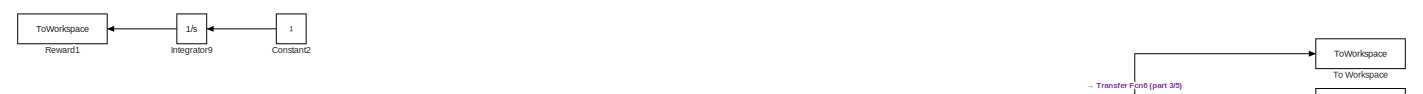
[diagram: root canvas - part 1/5, top right region]
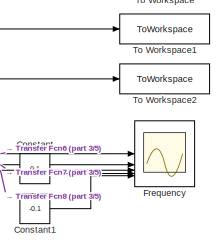
[diagram: root canvas - part 2/5, top right region]
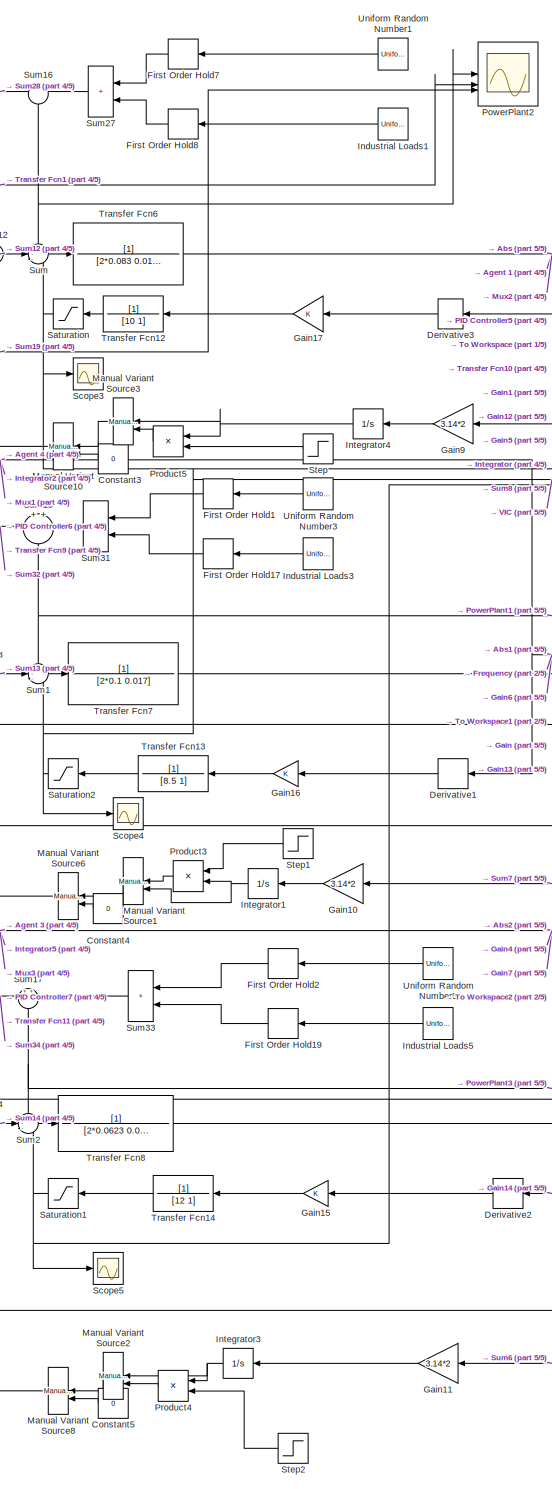
[diagram: root canvas - part 3/5, center side, full height]
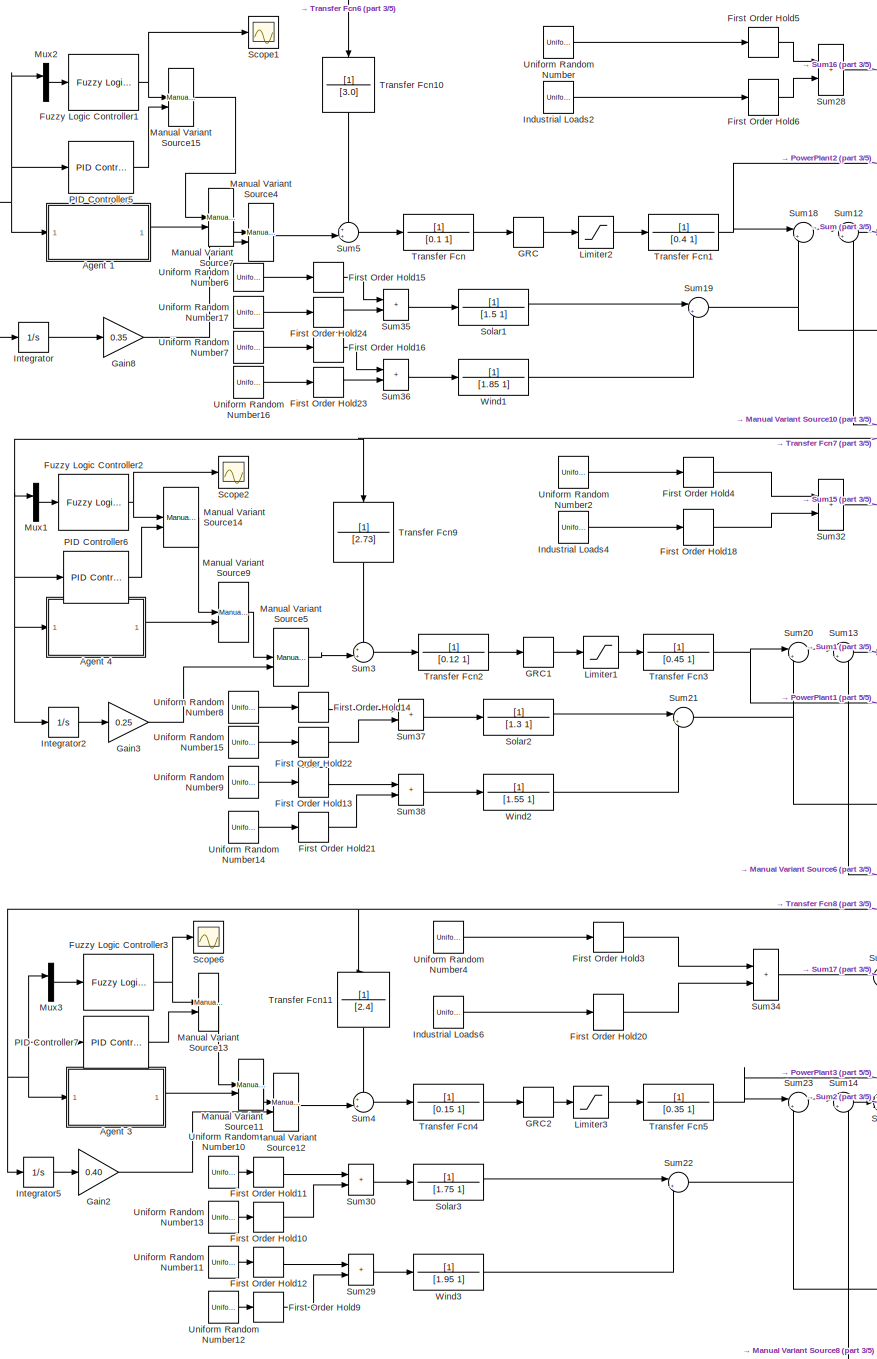
[diagram: root canvas - part 4/5, left side, full height]
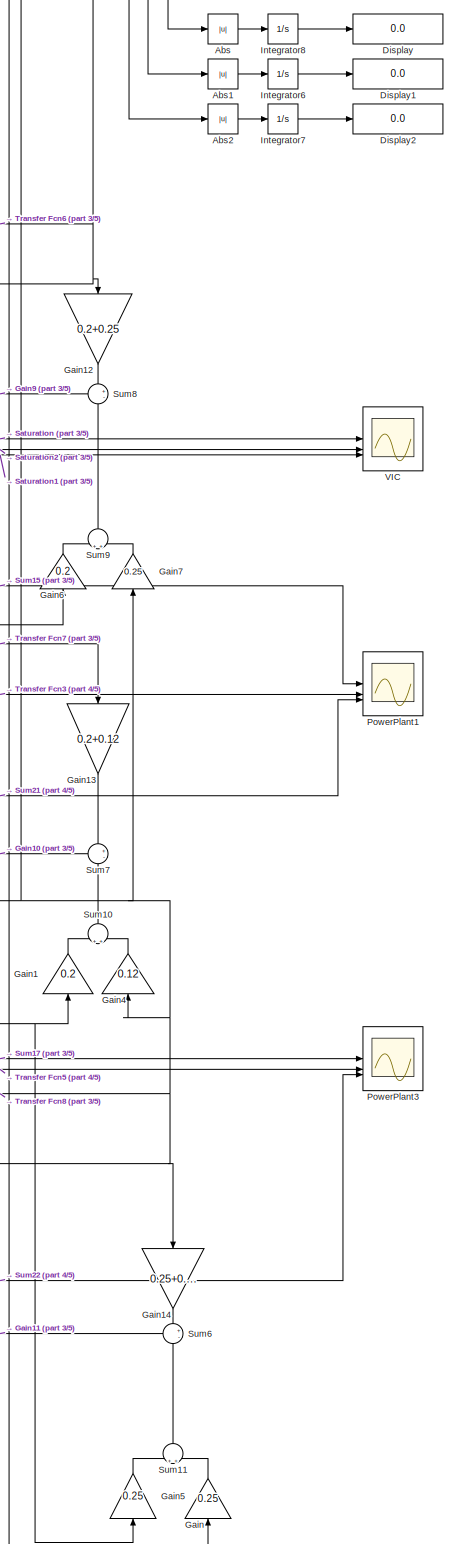
[diagram: root canvas - part 5/5, right side, full height]
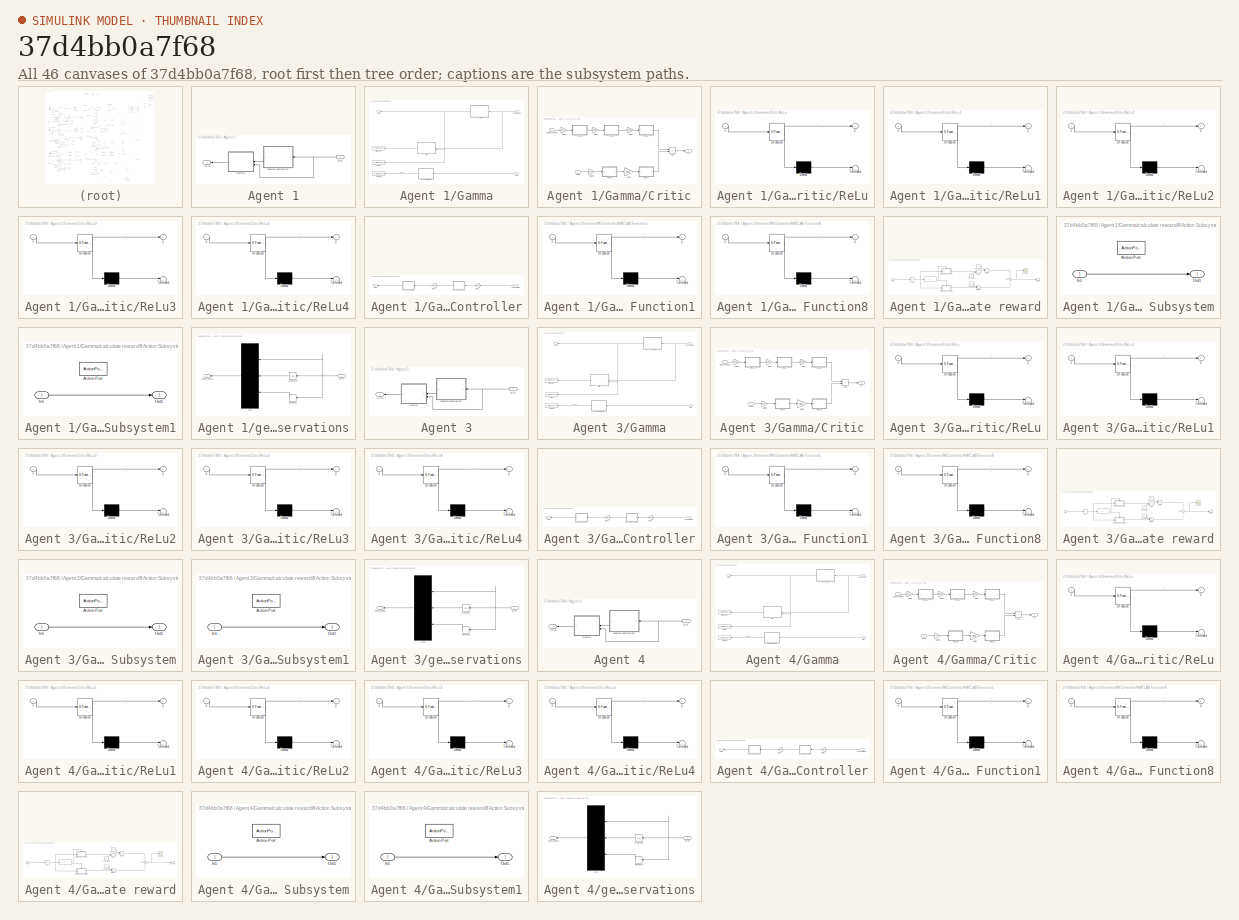
[diagram: thumbnail index - all 46 canvases of the model, root first then tree order]
MODEL slx_37d4bb0a7f68
KIND model
CONFIG AbsTol = auto
CONFIG EnableMultiTasking = off
CONFIG FixedStep = auto
CONFIG MaxStep = auto
CONFIG MinStep = auto
CONFIG RelTol = 1e-3
CONFIG SampleTimeConstraint = Unconstrained
CONFIG SolverName = ode45
CONFIG StartTime = 0.0
CONFIG StopTime = 1000
BLOCK [Abs] Abs
  SaturateOnIntegerOverflow = off
BLOCK [Abs] Abs1
  SaturateOnIntegerOverflow = off
BLOCK [Abs] Abs2
  SaturateOnIntegerOverflow = off
BLOCK [SubSystem] Agent 1
BLOCK [Outport] Agent 1/Action
BLOCK [SubSystem] Agent 1/Gamma
BLOCK [Outport] Agent 1/Gamma/Action
BLOCK [ToWorkspace] Agent 1/Gamma/Action1
  FixptAsFi = on
  MaxDataPoints = inf
  SampleTime = 1
  Save2DSignal = 2-D array (concatenate along first dimension)
  VariableName = Action1
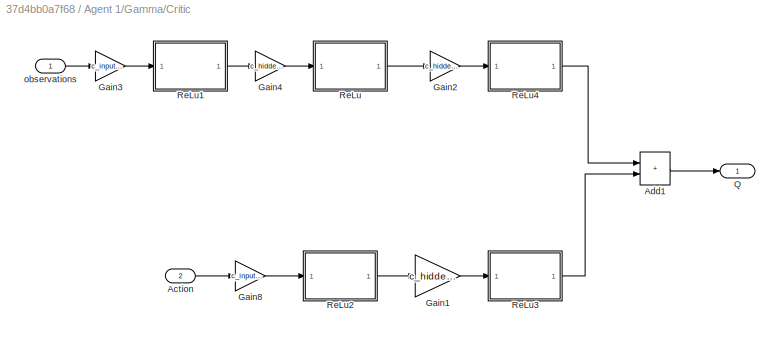
BLOCK [SubSystem] Agent 1/Gamma/Critic
  Commented = on
BLOCK [Inport] Agent 1/Gamma/Critic/Action
  Port = 2
BLOCK [Sum] Agent 1/Gamma/Critic/Add1
  IconShape = rectangular
BLOCK [Gain] Agent 1/Gamma/Critic/Gain1
  Gain = c_hidden_weights_a1
  Multiplication = Matrix(K*u)
BLOCK [Gain] Agent 1/Gamma/Critic/Gain2
  Gain = c_hidden_weights12
  Multiplication = Matrix(K*u)
BLOCK [Gain] Agent 1/Gamma/Critic/Gain3
  Gain = c_input_weights1
  Multiplication = Matrix(K*u)
BLOCK [Gain] Agent 1/Gamma/Critic/Gain4
  Gain = c_hidden_weights11
  Multiplication = Matrix(K*u)
BLOCK [Gain] Agent 1/Gamma/Critic/Gain8
  Gain = c_input_weights_a1
  Multiplication = Matrix(K*u)
BLOCK [Outport] Agent 1/Gamma/Critic/Q
BLOCK [SubSystem] Agent 1/Gamma/Critic/ReLu
  ErrorFcn = Stateflow.Translate.translate
  PermitHierarchicalResolution = ExplicitOnly
  SFBlockType = MATLAB Function
  TreatAsAtomicUnit = on
BLOCK [Demux] Agent 1/Gamma/Critic/ReLu/ Demux 
  Outputs = 1
BLOCK [S-Function] Agent 1/Gamma/Critic/ReLu/ SFunction 
  EnableBusSupport = on
  FunctionName = sf_sfun
  PortCounts = [1 2]
  SFcnIsStateOwnerBlock = off
  SFunctionDeploymentMode = off
  Tag = Stateflow S-Function 8
BLOCK [Terminator] Agent 1/Gamma/Critic/ReLu/ Terminator 
BLOCK [Inport] Agent 1/Gamma/Critic/ReLu/u
BLOCK [Outport] Agent 1/Gamma/Critic/ReLu/y
BLOCK [SubSystem] Agent 1/Gamma/Critic/ReLu1
  ErrorFcn = Stateflow.Translate.translate
  PermitHierarchicalResolution = ExplicitOnly
  SFBlockType = MATLAB Function
  TreatAsAtomicUnit = on
BLOCK [Demux] Agent 1/Gamma/Critic/ReLu1/ Demux 
  Outputs = 1
BLOCK [S-Function] Agent 1/Gamma/Critic/ReLu1/ SFunction 
  EnableBusSupport = on
  FunctionName = sf_sfun
  PortCounts = [1 2]
  SFcnIsStateOwnerBlock = off
  SFunctionDeploymentMode = off
  Tag = Stateflow S-Function 9
BLOCK [Terminator] Agent 1/Gamma/Critic/ReLu1/ Terminator 
BLOCK [Inport] Agent 1/Gamma/Critic/ReLu1/u
BLOCK [Outport] Agent 1/Gamma/Critic/ReLu1/y
BLOCK [SubSystem] Agent 1/Gamma/Critic/ReLu2
  ErrorFcn = Stateflow.Translate.translate
  PermitHierarchicalResolution = ExplicitOnly
  SFBlockType = MATLAB Function
  TreatAsAtomicUnit = on
BLOCK [Demux] Agent 1/Gamma/Critic/ReLu2/ Demux 
  Outputs = 1
BLOCK [S-Function] Agent 1/Gamma/Critic/ReLu2/ SFunction 
  EnableBusSupport = on
  FunctionName = sf_sfun
  PortCounts = [1 2]
  SFcnIsStateOwnerBlock = off
  SFunctionDeploymentMode = off
  Tag = Stateflow S-Function 10
BLOCK [Terminator] Agent 1/Gamma/Critic/ReLu2/ Terminator 
BLOCK [Inport] Agent 1/Gamma/Critic/ReLu2/u
BLOCK [Outport] Agent 1/Gamma/Critic/ReLu2/y
BLOCK [SubSystem] Agent 1/Gamma/Critic/ReLu3
  ErrorFcn = Stateflow.Translate.translate
  PermitHierarchicalResolution = ExplicitOnly
  SFBlockType = MATLAB Function
  TreatAsAtomicUnit = on
BLOCK [Demux] Agent 1/Gamma/Critic/ReLu3/ Demux 
  Outputs = 1
BLOCK [S-Function] Agent 1/Gamma/Critic/ReLu3/ SFunction 
  EnableBusSupport = on
  FunctionName = sf_sfun
  PortCounts = [1 2]
  SFcnIsStateOwnerBlock = off
  SFunctionDeploymentMode = off
  Tag = Stateflow S-Function 11
BLOCK [Terminator] Agent 1/Gamma/Critic/ReLu3/ Terminator 
BLOCK [Inport] Agent 1/Gamma/Critic/ReLu3/u
BLOCK [Outport] Agent 1/Gamma/Critic/ReLu3/y
BLOCK [SubSystem] Agent 1/Gamma/Critic/ReLu4
  ErrorFcn = Stateflow.Translate.translate
  PermitHierarchicalResolution = ExplicitOnly
  SFBlockType = MATLAB Function
  TreatAsAtomicUnit = on
BLOCK [Demux] Agent 1/Gamma/Critic/ReLu4/ Demux 
  Outputs = 1
BLOCK [S-Function] Agent 1/Gamma/Critic/ReLu4/ SFunction 
  EnableBusSupport = on
  FunctionName = sf_sfun
  PortCounts = [1 2]
  SFcnIsStateOwnerBlock = off
  SFunctionDeploymentMode = off
  Tag = Stateflow S-Function 12
BLOCK [Terminator] Agent 1/Gamma/Critic/ReLu4/ Terminator 
BLOCK [Inport] Agent 1/Gamma/Critic/ReLu4/u
BLOCK [Outport] Agent 1/Gamma/Critic/ReLu4/y
BLOCK [Inport] Agent 1/Gamma/Critic/observations
BLOCK [ToWorkspace] Agent 1/Gamma/CriticOutput
  Commented = on
  FixptAsFi = on
  MaxDataPoints = inf
  SampleTime = 1
  Save2DSignal = 2-D array (concatenate along first dimension)
  VariableName = CriticOutput1
BLOCK [SubSystem] Agent 1/Gamma/NN Controller
BLOCK [Outport] Agent 1/Gamma/NN Controller/Action
BLOCK [Gain] Agent 1/Gamma/NN Controller/Gain1
  Gain = a_input_weights1(:,:)
  Multiplication = Matrix(K*u)
BLOCK [Gain] Agent 1/Gamma/NN Controller/Gain4
  Gain = a_hidden_weights1(:,:)
  Multiplication = Matrix(K*u)
BLOCK [SubSystem] Agent 1/Gamma/NN Controller/MATLAB Function1
  ErrorFcn = Stateflow.Translate.translate
  PermitHierarchicalResolution = ExplicitOnly
  SFBlockType = MATLAB Function
  TreatAsAtomicUnit = on
BLOCK [Demux] Agent 1/Gamma/NN Controller/MATLAB Function1/ Demux 
  Outputs = 1
BLOCK [S-Function] Agent 1/Gamma/NN Controller/MATLAB Function1/ SFunction 
  EnableBusSupport = on
  FunctionName = sf_sfun
  PortCounts = [1 2]
  SFcnIsStateOwnerBlock = off
  SFunctionDeploymentMode = off
  Tag = Stateflow S-Function 13
BLOCK [Terminator] Agent 1/Gamma/NN Controller/MATLAB Function1/ Terminator 
BLOCK [Inport] Agent 1/Gamma/NN Controller/MATLAB Function1/u
BLOCK [Outport] Agent 1/Gamma/NN Controller/MATLAB Function1/y
BLOCK [SubSystem] Agent 1/Gamma/NN Controller/MATLAB Function8
  ErrorFcn = Stateflow.Translate.translate
  PermitHierarchicalResolution = ExplicitOnly
  SFBlockType = MATLAB Function
  TreatAsAtomicUnit = on
BLOCK [Demux] Agent 1/Gamma/NN Controller/MATLAB Function8/ Demux 
  Outputs = 1
BLOCK [S-Function] Agent 1/Gamma/NN Controller/MATLAB Function8/ SFunction 
  EnableBusSupport = on
  FunctionName = sf_sfun
  PortCounts = [1 2]
  SFcnIsStateOwnerBlock = off
  SFunctionDeploymentMode = off
  Tag = Stateflow S-Function 14
BLOCK [Terminator] Agent 1/Gamma/NN Controller/MATLAB Function8/ Terminator 
BLOCK [Inport] Agent 1/Gamma/NN Controller/MATLAB Function8/u
BLOCK [Outport] Agent 1/Gamma/NN Controller/MATLAB Function8/y
BLOCK [Inport] Agent 1/Gamma/NN Controller/observations
BLOCK [ToWorkspace] Agent 1/Gamma/Reward
  FixptAsFi = on
  MaxDataPoints = inf
  SampleTime = 1
  Save2DSignal = 2-D array (concatenate along first dimension)
  VariableName = Reward1
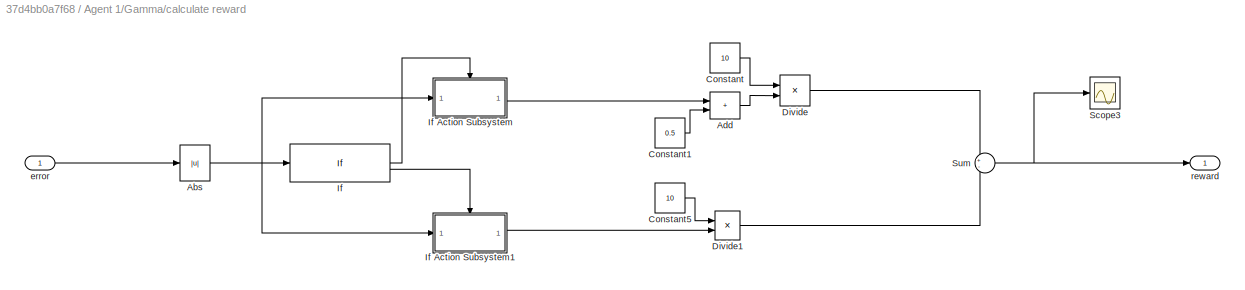
BLOCK [SubSystem] Agent 1/Gamma/calculate reward
BLOCK [Abs] Agent 1/Gamma/calculate reward/Abs
  SaturateOnIntegerOverflow = off
BLOCK [Sum] Agent 1/Gamma/calculate reward/Add
  IconShape = rectangular
BLOCK [Constant] Agent 1/Gamma/calculate reward/Constant
  Value = 10
BLOCK [Constant] Agent 1/Gamma/calculate reward/Constant1
  Value = 0.5
  VectorParams1D = off
BLOCK [Constant] Agent 1/Gamma/calculate reward/Constant5
  Value = 10
  VectorParams1D = off
BLOCK [Product] Agent 1/Gamma/calculate reward/Divide
  Inputs = */
BLOCK [Product] Agent 1/Gamma/calculate reward/Divide1
  Inputs = **
BLOCK [If] Agent 1/Gamma/calculate reward/If
  ElseIfExpressions = u1 > 0.05
  IfExpression = u1 < 0.05
  ShowElse = off
BLOCK [SubSystem] Agent 1/Gamma/calculate reward/If Action Subsystem
  TreatAsAtomicUnit = on
BLOCK [ActionPort] Agent 1/Gamma/calculate reward/If Action Subsystem/Action Port
  ActionPortLabel = if(u1 < 0.05)
BLOCK [Inport] Agent 1/Gamma/calculate reward/If Action Subsystem/In1
BLOCK [Outport] Agent 1/Gamma/calculate reward/If Action Subsystem/Out1
BLOCK [SubSystem] Agent 1/Gamma/calculate reward/If Action Subsystem1
  TreatAsAtomicUnit = on
BLOCK [ActionPort] Agent 1/Gamma/calculate reward/If Action Subsystem1/Action Port
  ActionPortLabel = elseif(u1 > 0.05)
BLOCK [Inport] Agent 1/Gamma/calculate reward/If Action Subsystem1/In1
BLOCK [Outport] Agent 1/Gamma/calculate reward/If Action Subsystem1/Out1
BLOCK [Scope] Agent 1/Gamma/calculate reward/Scope3
  Floating = off
  NumInputPorts = 1
  ScopeSpecificationString = Simulink.scopes.TimeScopeBlockCfg('CurrentConfiguration', extmgr.ConfigurationSet(extmgr.Configuration('Core','General UI',true,'FigureColor',[1 1 1]),extmgr.Configuration('Core','Source UI',true),extmgr.Configuration('Sources','WiredSimulink',true,'DataLoggingVariableName','ScopeData1'),extmgr.Configuration('Visuals','Time Domain',true,'SerializedDisplays',{struct('MinYLimReal','7.80228','MaxYLim...<+1540ch>  <repeated x3 — deduplicated; at blocks: Scope3>
BLOCK [Sum] Agent 1/Gamma/calculate reward/Sum
  Inputs = +-
  OutDataTypeStr = double
BLOCK [Inport] Agent 1/Gamma/calculate reward/error
BLOCK [Outport] Agent 1/Gamma/calculate reward/reward
  VectorParamsAs1DForOutWhenUnconnected = off
BLOCK [Inport] Agent 1/Gamma/error
  Port = 2
BLOCK [Inport] Agent 1/Gamma/observations
BLOCK [Inport] Agent 1/error
BLOCK [SubSystem] Agent 1/generate observations
BLOCK [Derivative] Agent 1/generate observations/Derivative
BLOCK [Integrator] Agent 1/generate observations/Integrator
  IgnoreLimit = on
BLOCK [Mux] Agent 1/generate observations/Mux
  DisplayOption = bar
  Inputs = 3
BLOCK [Inport] Agent 1/generate observations/error
BLOCK [Outport] Agent 1/generate observations/observations
  VectorParamsAs1DForOutWhenUnconnected = off
BLOCK [SubSystem] Agent 3
BLOCK [Outport] Agent 3/Action
BLOCK [SubSystem] Agent 3/Gamma
BLOCK [Outport] Agent 3/Gamma/Action
BLOCK [ToWorkspace] Agent 3/Gamma/Action1
  FixptAsFi = on
  MaxDataPoints = inf
  SampleTime = 1
  Save2DSignal = 2-D array (concatenate along first dimension)
  VariableName = Action3
BLOCK [SubSystem] Agent 3/Gamma/Critic
  Commented = on
BLOCK [Inport] Agent 3/Gamma/Critic/Action
  Port = 2
BLOCK [Sum] Agent 3/Gamma/Critic/Add1
  IconShape = rectangular
BLOCK [Gain] Agent 3/Gamma/Critic/Gain1
  Gain = c_hidden_weights_a3
  Multiplication = Matrix(K*u)
BLOCK [Gain] Agent 3/Gamma/Critic/Gain2
  Gain = c_hidden_weights32
  Multiplication = Matrix(K*u)
BLOCK [Gain] Agent 3/Gamma/Critic/Gain3
  Gain = c_input_weights3
  Multiplication = Matrix(K*u)
BLOCK [Gain] Agent 3/Gamma/Critic/Gain4
  Gain = c_hidden_weights31
  Multiplication = Matrix(K*u)
BLOCK [Gain] Agent 3/Gamma/Critic/Gain8
  Gain = c_input_weights_a3
  Multiplication = Matrix(K*u)
BLOCK [Outport] Agent 3/Gamma/Critic/Q
BLOCK [SubSystem] Agent 3/Gamma/Critic/ReLu
  ErrorFcn = Stateflow.Translate.translate
  PermitHierarchicalResolution = ExplicitOnly
  SFBlockType = MATLAB Function
  TreatAsAtomicUnit = on
BLOCK [Demux] Agent 3/Gamma/Critic/ReLu/ Demux 
  Outputs = 1
BLOCK [S-Function] Agent 3/Gamma/Critic/ReLu/ SFunction 
  EnableBusSupport = on
  FunctionName = sf_sfun
  PortCounts = [1 2]
  SFcnIsStateOwnerBlock = off
  SFunctionDeploymentMode = off
  Tag = Stateflow S-Function 1
BLOCK [Terminator] Agent 3/Gamma/Critic/ReLu/ Terminator 
BLOCK [Inport] Agent 3/Gamma/Critic/ReLu/u
BLOCK [Outport] Agent 3/Gamma/Critic/ReLu/y
BLOCK [SubSystem] Agent 3/Gamma/Critic/ReLu1
  ErrorFcn = Stateflow.Translate.translate
  PermitHierarchicalResolution = ExplicitOnly
  SFBlockType = MATLAB Function
  TreatAsAtomicUnit = on
BLOCK [Demux] Agent 3/Gamma/Critic/ReLu1/ Demux 
  Outputs = 1
BLOCK [S-Function] Agent 3/Gamma/Critic/ReLu1/ SFunction 
  EnableBusSupport = on
  FunctionName = sf_sfun
  PortCounts = [1 2]
  SFcnIsStateOwnerBlock = off
  SFunctionDeploymentMode = off
  Tag = Stateflow S-Function 2
BLOCK [Terminator] Agent 3/Gamma/Critic/ReLu1/ Terminator 
BLOCK [Inport] Agent 3/Gamma/Critic/ReLu1/u
BLOCK [Outport] Agent 3/Gamma/Critic/ReLu1/y
BLOCK [SubSystem] Agent 3/Gamma/Critic/ReLu2
  ErrorFcn = Stateflow.Translate.translate
  PermitHierarchicalResolution = ExplicitOnly
  SFBlockType = MATLAB Function
  TreatAsAtomicUnit = on
BLOCK [Demux] Agent 3/Gamma/Critic/ReLu2/ Demux 
  Outputs = 1
BLOCK [S-Function] Agent 3/Gamma/Critic/ReLu2/ SFunction 
  EnableBusSupport = on
  FunctionName = sf_sfun
  PortCounts = [1 2]
  SFcnIsStateOwnerBlock = off
  SFunctionDeploymentMode = off
  Tag = Stateflow S-Function 3
BLOCK [Terminator] Agent 3/Gamma/Critic/ReLu2/ Terminator 
BLOCK [Inport] Agent 3/Gamma/Critic/ReLu2/u
BLOCK [Outport] Agent 3/Gamma/Critic/ReLu2/y
BLOCK [SubSystem] Agent 3/Gamma/Critic/ReLu3
  ErrorFcn = Stateflow.Translate.translate
  PermitHierarchicalResolution = ExplicitOnly
  SFBlockType = MATLAB Function
  TreatAsAtomicUnit = on
BLOCK [Demux] Agent 3/Gamma/Critic/ReLu3/ Demux 
  Outputs = 1
BLOCK [S-Function] Agent 3/Gamma/Critic/ReLu3/ SFunction 
  EnableBusSupport = on
  FunctionName = sf_sfun
  PortCounts = [1 2]
  SFcnIsStateOwnerBlock = off
  SFunctionDeploymentMode = off
  Tag = Stateflow S-Function 4
BLOCK [Terminator] Agent 3/Gamma/Critic/ReLu3/ Terminator 
BLOCK [Inport] Agent 3/Gamma/Critic/ReLu3/u
BLOCK [Outport] Agent 3/Gamma/Critic/ReLu3/y
BLOCK [SubSystem] Agent 3/Gamma/Critic/ReLu4
  ErrorFcn = Stateflow.Translate.translate
  PermitHierarchicalResolution = ExplicitOnly
  SFBlockType = MATLAB Function
  TreatAsAtomicUnit = on
BLOCK [Demux] Agent 3/Gamma/Critic/ReLu4/ Demux 
  Outputs = 1
BLOCK [S-Function] Agent 3/Gamma/Critic/ReLu4/ SFunction 
  EnableBusSupport = on
  FunctionName = sf_sfun
  PortCounts = [1 2]
  SFcnIsStateOwnerBlock = off
  SFunctionDeploymentMode = off
  Tag = Stateflow S-Function 5
BLOCK [Terminator] Agent 3/Gamma/Critic/ReLu4/ Terminator 
BLOCK [Inport] Agent 3/Gamma/Critic/ReLu4/u
BLOCK [Outport] Agent 3/Gamma/Critic/ReLu4/y
BLOCK [Inport] Agent 3/Gamma/Critic/observations
BLOCK [ToWorkspace] Agent 3/Gamma/CriticOutput
  Commented = on
  FixptAsFi = on
  MaxDataPoints = inf
  SampleTime = 1
  Save2DSignal = 2-D array (concatenate along first dimension)
  VariableName = CriticOutput3
BLOCK [SubSystem] Agent 3/Gamma/NN Controller
BLOCK [Outport] Agent 3/Gamma/NN Controller/Action
BLOCK [Gain] Agent 3/Gamma/NN Controller/Gain1
  Gain = a_input_weights3(:,:)
  Multiplication = Matrix(K*u)
BLOCK [Gain] Agent 3/Gamma/NN Controller/Gain4
  Gain = a_hidden_weights3(:,:)
  Multiplication = Matrix(K*u)
BLOCK [SubSystem] Agent 3/Gamma/NN Controller/MATLAB Function1
  ErrorFcn = Stateflow.Translate.translate
  PermitHierarchicalResolution = ExplicitOnly
  SFBlockType = MATLAB Function
  TreatAsAtomicUnit = on
BLOCK [Demux] Agent 3/Gamma/NN Controller/MATLAB Function1/ Demux 
  Outputs = 1
BLOCK [S-Function] Agent 3/Gamma/NN Controller/MATLAB Function1/ SFunction 
  EnableBusSupport = on
  FunctionName = sf_sfun
  PortCounts = [1 2]
  SFcnIsStateOwnerBlock = off
  SFunctionDeploymentMode = off
  Tag = Stateflow S-Function 6
BLOCK [Terminator] Agent 3/Gamma/NN Controller/MATLAB Function1/ Terminator 
BLOCK [Inport] Agent 3/Gamma/NN Controller/MATLAB Function1/u
BLOCK [Outport] Agent 3/Gamma/NN Controller/MATLAB Function1/y
BLOCK [SubSystem] Agent 3/Gamma/NN Controller/MATLAB Function8
  ErrorFcn = Stateflow.Translate.translate
  PermitHierarchicalResolution = ExplicitOnly
  SFBlockType = MATLAB Function
  TreatAsAtomicUnit = on
BLOCK [Demux] Agent 3/Gamma/NN Controller/MATLAB Function8/ Demux 
  Outputs = 1
BLOCK [S-Function] Agent 3/Gamma/NN Controller/MATLAB Function8/ SFunction 
  EnableBusSupport = on
  FunctionName = sf_sfun
  PortCounts = [1 2]
  SFcnIsStateOwnerBlock = off
  SFunctionDeploymentMode = off
  Tag = Stateflow S-Function 7
BLOCK [Terminator] Agent 3/Gamma/NN Controller/MATLAB Function8/ Terminator 
BLOCK [Inport] Agent 3/Gamma/NN Controller/MATLAB Function8/u
BLOCK [Outport] Agent 3/Gamma/NN Controller/MATLAB Function8/y
BLOCK [Inport] Agent 3/Gamma/NN Controller/observations
BLOCK [ToWorkspace] Agent 3/Gamma/Reward
  FixptAsFi = on
  MaxDataPoints = inf
  SampleTime = 1
  Save2DSignal = 2-D array (concatenate along first dimension)
  VariableName = Reward3
BLOCK [SubSystem] Agent 3/Gamma/calculate reward
BLOCK [Abs] Agent 3/Gamma/calculate reward/Abs
  SaturateOnIntegerOverflow = off
BLOCK [Sum] Agent 3/Gamma/calculate reward/Add
  IconShape = rectangular
BLOCK [Constant] Agent 3/Gamma/calculate reward/Constant
  Value = 10
BLOCK [Constant] Agent 3/Gamma/calculate reward/Constant1
  Value = 0.5
  VectorParams1D = off
BLOCK [Constant] Agent 3/Gamma/calculate reward/Constant5
  Value = 10
  VectorParams1D = off
BLOCK [Product] Agent 3/Gamma/calculate reward/Divide
  Inputs = */
BLOCK [Product] Agent 3/Gamma/calculate reward/Divide1
  Inputs = **
BLOCK [If] Agent 3/Gamma/calculate reward/If
  ElseIfExpressions = u1 > 0.05
  IfExpression = u1 < 0.05
  ShowElse = off
BLOCK [SubSystem] Agent 3/Gamma/calculate reward/If Action Subsystem
  TreatAsAtomicUnit = on
BLOCK [ActionPort] Agent 3/Gamma/calculate reward/If Action Subsystem/Action Port
  ActionPortLabel = if(u1 < 0.05)
BLOCK [Inport] Agent 3/Gamma/calculate reward/If Action Subsystem/In1
BLOCK [Outport] Agent 3/Gamma/calculate reward/If Action Subsystem/Out1
BLOCK [SubSystem] Agent 3/Gamma/calculate reward/If Action Subsystem1
  TreatAsAtomicUnit = on
BLOCK [ActionPort] Agent 3/Gamma/calculate reward/If Action Subsystem1/Action Port
  ActionPortLabel = elseif(u1 > 0.05)
BLOCK [Inport] Agent 3/Gamma/calculate reward/If Action Subsystem1/In1
BLOCK [Outport] Agent 3/Gamma/calculate reward/If Action Subsystem1/Out1
BLOCK [Scope] Agent 3/Gamma/calculate reward/Scope3
  Floating = off
  NumInputPorts = 1
BLOCK [Sum] Agent 3/Gamma/calculate reward/Sum
  Inputs = +-
  OutDataTypeStr = double
BLOCK [Inport] Agent 3/Gamma/calculate reward/error
BLOCK [Outport] Agent 3/Gamma/calculate reward/reward
  VectorParamsAs1DForOutWhenUnconnected = off
BLOCK [Inport] Agent 3/Gamma/error
  Port = 2
BLOCK [Inport] Agent 3/Gamma/observations
BLOCK [Inport] Agent 3/error
BLOCK [SubSystem] Agent 3/generate observations
BLOCK [Derivative] Agent 3/generate observations/Derivative
BLOCK [Integrator] Agent 3/generate observations/Integrator
  IgnoreLimit = on
BLOCK [Mux] Agent 3/generate observations/Mux
  DisplayOption = bar
  Inputs = 3
BLOCK [Inport] Agent 3/generate observations/error
BLOCK [Outport] Agent 3/generate observations/observations
  VectorParamsAs1DForOutWhenUnconnected = off
BLOCK [SubSystem] Agent 4
BLOCK [Outport] Agent 4/Action
BLOCK [SubSystem] Agent 4/Gamma
BLOCK [Outport] Agent 4/Gamma/Action
BLOCK [ToWorkspace] Agent 4/Gamma/Action1
  FixptAsFi = on
  MaxDataPoints = inf
  SampleTime = 1
  Save2DSignal = 2-D array (concatenate along first dimension)
  VariableName = Action2
BLOCK [SubSystem] Agent 4/Gamma/Critic
  Commented = on
BLOCK [Inport] Agent 4/Gamma/Critic/Action
  Port = 2
BLOCK [Sum] Agent 4/Gamma/Critic/Add1
  IconShape = rectangular
BLOCK [Gain] Agent 4/Gamma/Critic/Gain1
  Gain = c_hidden_weights_a2
  Multiplication = Matrix(K*u)
BLOCK [Gain] Agent 4/Gamma/Critic/Gain2
  Gain = c_hidden_weights22
  Multiplication = Matrix(K*u)
BLOCK [Gain] Agent 4/Gamma/Critic/Gain3
  Gain = c_input_weights2
  Multiplication = Matrix(K*u)
BLOCK [Gain] Agent 4/Gamma/Critic/Gain4
  Gain = c_hidden_weights21
  Multiplication = Matrix(K*u)
BLOCK [Gain] Agent 4/Gamma/Critic/Gain8
  Gain = c_input_weights_a2
  Multiplication = Matrix(K*u)
BLOCK [Outport] Agent 4/Gamma/Critic/Q
BLOCK [SubSystem] Agent 4/Gamma/Critic/ReLu
  ErrorFcn = Stateflow.Translate.translate
  PermitHierarchicalResolution = ExplicitOnly
  SFBlockType = MATLAB Function
  TreatAsAtomicUnit = on
BLOCK [Demux] Agent 4/Gamma/Critic/ReLu/ Demux 
  Outputs = 1
BLOCK [S-Function] Agent 4/Gamma/Critic/ReLu/ SFunction 
  EnableBusSupport = on
  FunctionName = sf_sfun
  PortCounts = [1 2]
  SFcnIsStateOwnerBlock = off
  SFunctionDeploymentMode = off
  Tag = Stateflow S-Function 19
BLOCK [Terminator] Agent 4/Gamma/Critic/ReLu/ Terminator 
BLOCK [Inport] Agent 4/Gamma/Critic/ReLu/u
BLOCK [Outport] Agent 4/Gamma/Critic/ReLu/y
BLOCK [SubSystem] Agent 4/Gamma/Critic/ReLu1
  ErrorFcn = Stateflow.Translate.translate
  PermitHierarchicalResolution = ExplicitOnly
  SFBlockType = MATLAB Function
  TreatAsAtomicUnit = on
BLOCK [Demux] Agent 4/Gamma/Critic/ReLu1/ Demux 
  Outputs = 1
BLOCK [S-Function] Agent 4/Gamma/Critic/ReLu1/ SFunction 
  EnableBusSupport = on
  FunctionName = sf_sfun
  PortCounts = [1 2]
  SFcnIsStateOwnerBlock = off
  SFunctionDeploymentMode = off
  Tag = Stateflow S-Function 20
BLOCK [Terminator] Agent 4/Gamma/Critic/ReLu1/ Terminator 
BLOCK [Inport] Agent 4/Gamma/Critic/ReLu1/u
BLOCK [Outport] Agent 4/Gamma/Critic/ReLu1/y
BLOCK [SubSystem] Agent 4/Gamma/Critic/ReLu2
  ErrorFcn = Stateflow.Translate.translate
  PermitHierarchicalResolution = ExplicitOnly
  SFBlockType = MATLAB Function
  TreatAsAtomicUnit = on
BLOCK [Demux] Agent 4/Gamma/Critic/ReLu2/ Demux 
  Outputs = 1
BLOCK [S-Function] Agent 4/Gamma/Critic/ReLu2/ SFunction 
  EnableBusSupport = on
  FunctionName = sf_sfun
  PortCounts = [1 2]
  SFcnIsStateOwnerBlock = off
  SFunctionDeploymentMode = off
  Tag = Stateflow S-Function 21
BLOCK [Terminator] Agent 4/Gamma/Critic/ReLu2/ Terminator 
BLOCK [Inport] Agent 4/Gamma/Critic/ReLu2/u
BLOCK [Outport] Agent 4/Gamma/Critic/ReLu2/y
BLOCK [SubSystem] Agent 4/Gamma/Critic/ReLu3
  ErrorFcn = Stateflow.Translate.translate
  PermitHierarchicalResolution = ExplicitOnly
  SFBlockType = MATLAB Function
  TreatAsAtomicUnit = on
BLOCK [Demux] Agent 4/Gamma/Critic/ReLu3/ Demux 
  Outputs = 1
BLOCK [S-Function] Agent 4/Gamma/Critic/ReLu3/ SFunction 
  EnableBusSupport = on
  FunctionName = sf_sfun
  PortCounts = [1 2]
  SFcnIsStateOwnerBlock = off
  SFunctionDeploymentMode = off
  Tag = Stateflow S-Function 22
BLOCK [Terminator] Agent 4/Gamma/Critic/ReLu3/ Terminator 
BLOCK [Inport] Agent 4/Gamma/Critic/ReLu3/u
BLOCK [Outport] Agent 4/Gamma/Critic/ReLu3/y
BLOCK [SubSystem] Agent 4/Gamma/Critic/ReLu4
  ErrorFcn = Stateflow.Translate.translate
  PermitHierarchicalResolution = ExplicitOnly
  SFBlockType = MATLAB Function
  TreatAsAtomicUnit = on
BLOCK [Demux] Agent 4/Gamma/Critic/ReLu4/ Demux 
  Outputs = 1
BLOCK [S-Function] Agent 4/Gamma/Critic/ReLu4/ SFunction 
  EnableBusSupport = on
  FunctionName = sf_sfun
  PortCounts = [1 2]
  SFcnIsStateOwnerBlock = off
  SFunctionDeploymentMode = off
  Tag = Stateflow S-Function 23
BLOCK [Terminator] Agent 4/Gamma/Critic/ReLu4/ Terminator 
BLOCK [Inport] Agent 4/Gamma/Critic/ReLu4/u
BLOCK [Outport] Agent 4/Gamma/Critic/ReLu4/y
BLOCK [Inport] Agent 4/Gamma/Critic/observations
BLOCK [ToWorkspace] Agent 4/Gamma/CriticOutput
  Commented = on
  FixptAsFi = on
  MaxDataPoints = inf
  SampleTime = 1
  Save2DSignal = 2-D array (concatenate along first dimension)
  VariableName = CriticOutput2
BLOCK [SubSystem] Agent 4/Gamma/NN Controller
BLOCK [Outport] Agent 4/Gamma/NN Controller/Action
BLOCK [Gain] Agent 4/Gamma/NN Controller/Gain1
  Gain = a_input_weights2(:,:)
  Multiplication = Matrix(K*u)
BLOCK [Gain] Agent 4/Gamma/NN Controller/Gain4
  Gain = a_hidden_weights2(:,:)
  Multiplication = Matrix(K*u)
BLOCK [SubSystem] Agent 4/Gamma/NN Controller/MATLAB Function1
  ErrorFcn = Stateflow.Translate.translate
  PermitHierarchicalResolution = ExplicitOnly
  SFBlockType = MATLAB Function
  TreatAsAtomicUnit = on
BLOCK [Demux] Agent 4/Gamma/NN Controller/MATLAB Function1/ Demux 
  Outputs = 1
BLOCK [S-Function] Agent 4/Gamma/NN Controller/MATLAB Function1/ SFunction 
  EnableBusSupport = on
  FunctionName = sf_sfun
  PortCounts = [1 2]
  SFcnIsStateOwnerBlock = off
  SFunctionDeploymentMode = off
  Tag = Stateflow S-Function 24
BLOCK [Terminator] Agent 4/Gamma/NN Controller/MATLAB Function1/ Terminator 
BLOCK [Inport] Agent 4/Gamma/NN Controller/MATLAB Function1/u
BLOCK [Outport] Agent 4/Gamma/NN Controller/MATLAB Function1/y
BLOCK [SubSystem] Agent 4/Gamma/NN Controller/MATLAB Function8
  ErrorFcn = Stateflow.Translate.translate
  PermitHierarchicalResolution = ExplicitOnly
  SFBlockType = MATLAB Function
  TreatAsAtomicUnit = on
BLOCK [Demux] Agent 4/Gamma/NN Controller/MATLAB Function8/ Demux 
  Outputs = 1
BLOCK [S-Function] Agent 4/Gamma/NN Controller/MATLAB Function8/ SFunction 
  EnableBusSupport = on
  FunctionName = sf_sfun
  PortCounts = [1 2]
  SFcnIsStateOwnerBlock = off
  SFunctionDeploymentMode = off
  Tag = Stateflow S-Function 25
BLOCK [Terminator] Agent 4/Gamma/NN Controller/MATLAB Function8/ Terminator 
BLOCK [Inport] Agent 4/Gamma/NN Controller/MATLAB Function8/u
BLOCK [Outport] Agent 4/Gamma/NN Controller/MATLAB Function8/y
BLOCK [Inport] Agent 4/Gamma/NN Controller/observations
BLOCK [ToWorkspace] Agent 4/Gamma/Reward
  FixptAsFi = on
  MaxDataPoints = inf
  SampleTime = 1
  Save2DSignal = 2-D array (concatenate along first dimension)
  VariableName = Reward2
BLOCK [SubSystem] Agent 4/Gamma/calculate reward
BLOCK [Abs] Agent 4/Gamma/calculate reward/Abs
  SaturateOnIntegerOverflow = off
BLOCK [Sum] Agent 4/Gamma/calculate reward/Add
  IconShape = rectangular
BLOCK [Constant] Agent 4/Gamma/calculate reward/Constant
  Value = 10
BLOCK [Constant] Agent 4/Gamma/calculate reward/Constant1
  Value = 0.5
  VectorParams1D = off
BLOCK [Constant] Agent 4/Gamma/calculate reward/Constant5
  Value = 10
  VectorParams1D = off
BLOCK [Product] Agent 4/Gamma/calculate reward/Divide
  Inputs = */
BLOCK [Product] Agent 4/Gamma/calculate reward/Divide1
  Inputs = **
BLOCK [If] Agent 4/Gamma/calculate reward/If
  ElseIfExpressions = u1 > 0.05
  IfExpression = u1 < 0.05
  ShowElse = off
BLOCK [SubSystem] Agent 4/Gamma/calculate reward/If Action Subsystem
  TreatAsAtomicUnit = on
BLOCK [ActionPort] Agent 4/Gamma/calculate reward/If Action Subsystem/Action Port
  ActionPortLabel = if(u1 < 0.05)
BLOCK [Inport] Agent 4/Gamma/calculate reward/If Action Subsystem/In1
BLOCK [Outport] Agent 4/Gamma/calculate reward/If Action Subsystem/Out1
BLOCK [SubSystem] Agent 4/Gamma/calculate reward/If Action Subsystem1
  TreatAsAtomicUnit = on
BLOCK [ActionPort] Agent 4/Gamma/calculate reward/If Action Subsystem1/Action Port
  ActionPortLabel = elseif(u1 > 0.05)
BLOCK [Inport] Agent 4/Gamma/calculate reward/If Action Subsystem1/In1
BLOCK [Outport] Agent 4/Gamma/calculate reward/If Action Subsystem1/Out1
BLOCK [Scope] Agent 4/Gamma/calculate reward/Scope3
  Floating = off
  NumInputPorts = 1
BLOCK [Sum] Agent 4/Gamma/calculate reward/Sum
  Inputs = +-
  OutDataTypeStr = double
BLOCK [Inport] Agent 4/Gamma/calculate reward/error
BLOCK [Outport] Agent 4/Gamma/calculate reward/reward
  VectorParamsAs1DForOutWhenUnconnected = off
BLOCK [Inport] Agent 4/Gamma/error
  Port = 2
BLOCK [Inport] Agent 4/Gamma/observations
BLOCK [Inport] Agent 4/error
BLOCK [SubSystem] Agent 4/generate observations
BLOCK [Derivative] Agent 4/generate observations/Derivative
BLOCK [Integrator] Agent 4/generate observations/Integrator
  IgnoreLimit = on
BLOCK [Mux] Agent 4/generate observations/Mux
  DisplayOption = bar
  Inputs = 3
BLOCK [Inport] Agent 4/generate observations/error
BLOCK [Outport] Agent 4/generate observations/observations
  VectorParamsAs1DForOutWhenUnconnected = off
BLOCK [Constant] Constant
  Value = 0.1
BLOCK [Constant] Constant1
  Value = -0.1
BLOCK [Constant] Constant2
  SampleTime = 1
BLOCK [Constant] Constant3
  Value = 0
BLOCK [Constant] Constant4
  Value = 0
BLOCK [Constant] Constant5
  Value = 0
BLOCK [Derivative] Derivative1
BLOCK [Derivative] Derivative2
BLOCK [Derivative] Derivative3
BLOCK [Display] Display
  Decimation = 1
BLOCK [Display] Display1
  Decimation = 1
BLOCK [Display] Display2
  Decimation = 1
BLOCK [FirstOrderHold] First Order Hold1
  ErrorTolerance = inf
BLOCK [FirstOrderHold] First Order Hold10
  ErrorTolerance = inf
BLOCK [FirstOrderHold] First Order Hold11
  ErrorTolerance = inf
BLOCK [FirstOrderHold] First Order Hold12
  ErrorTolerance = inf
BLOCK [FirstOrderHold] First Order Hold13
  ErrorTolerance = inf
BLOCK [FirstOrderHold] First Order Hold14
  ErrorTolerance = inf
BLOCK [FirstOrderHold] First Order Hold15
  ErrorTolerance = inf
BLOCK [FirstOrderHold] First Order Hold16
  ErrorTolerance = inf
BLOCK [FirstOrderHold] First Order Hold17
  ErrorTolerance = inf
BLOCK [FirstOrderHold] First Order Hold18
  ErrorTolerance = inf
BLOCK [FirstOrderHold] First Order Hold19
  ErrorTolerance = inf
BLOCK [FirstOrderHold] First Order Hold2
  ErrorTolerance = inf
BLOCK [FirstOrderHold] First Order Hold20
  ErrorTolerance = inf
BLOCK [FirstOrderHold] First Order Hold21
  ErrorTolerance = inf
BLOCK [FirstOrderHold] First Order Hold22
  ErrorTolerance = inf
BLOCK [FirstOrderHold] First Order Hold23
  ErrorTolerance = inf
BLOCK [FirstOrderHold] First Order Hold24
  ErrorTolerance = inf
BLOCK [FirstOrderHold] First Order Hold3
  ErrorTolerance = inf
BLOCK [FirstOrderHold] First Order Hold4
  ErrorTolerance = inf
BLOCK [FirstOrderHold] First Order Hold5
  ErrorTolerance = inf
BLOCK [FirstOrderHold] First Order Hold6
  ErrorTolerance = inf
BLOCK [FirstOrderHold] First Order Hold7
  ErrorTolerance = inf
BLOCK [FirstOrderHold] First Order Hold8
  ErrorTolerance = inf
BLOCK [FirstOrderHold] First Order Hold9
  ErrorTolerance = inf
BLOCK [Scope] Frequency
  Floating = off
  NumInputPorts = 5
  ScopeSpecificationString = Simulink.scopes.TimeScopeBlockCfg('CurrentConfiguration', extmgr.ConfigurationSet(extmgr.Configuration('Core','General UI',true),extmgr.Configuration('Core','Source UI',true),extmgr.Configuration('Sources','WiredSimulink',true),extmgr.Configuration('Visuals','Time Domain',true,'SerializedDisplays',{struct('MinYLimReal','-0.29873','MaxYLimReal','1.68856','YLabelReal','','MinYLimMag','0.00000','MaxY...<+1572ch>
BLOCK [Reference] Fuzzy Logic Controller1  REF=fuzblock/Fuzzy Logic   (lib defined in mdl_858b3b3e7478)
Controller
  Commented = on
  SourceBlock = fuzblock/Fuzzy Logic \nController
  SourceType = Fuzzy Inference System
BLOCK [Reference] Fuzzy Logic Controller2  REF=fuzblock/Fuzzy Logic   (lib defined in mdl_858b3b3e7478)
Controller
  Commented = on
  SourceBlock = fuzblock/Fuzzy Logic \nController
  SourceType = Fuzzy Inference System
BLOCK [Reference] Fuzzy Logic Controller3  REF=fuzblock/Fuzzy Logic   (lib defined in mdl_858b3b3e7478)
Controller
  Commented = on
  SourceBlock = fuzblock/Fuzzy Logic \nController
  SourceType = Fuzzy Inference System
BLOCK [DeadZone] GRC
  LowerValue = -0.12
  UpperValue = 0.12
BLOCK [DeadZone] GRC1
  LowerValue = -0.12
  UpperValue = 0.12
BLOCK [DeadZone] GRC2
  LowerValue = -0.12
  UpperValue = 0.12
BLOCK [Gain] Gain
  Gain = 0.25
  NameLocation = left
BLOCK [Gain] Gain1
  Gain = 0.2
  NameLocation = left
BLOCK [Gain] Gain10
  Gain = 3.14*2
BLOCK [Gain] Gain11
  Gain = 3.14*2
BLOCK [Gain] Gain12
  Gain = 0.2+0.25
  NameLocation = right
BLOCK [Gain] Gain13
  Gain = 0.2+0.12
  NameLocation = right
BLOCK [Gain] Gain14
  Gain = 0.25+0.25
  NameLocation = right
BLOCK [Gain] Gain15
BLOCK [Gain] Gain16
BLOCK [Gain] Gain17
BLOCK [Gain] Gain2
  Gain = 0.40
BLOCK [Gain] Gain3
  Gain = 0.25
BLOCK [Gain] Gain4
  Gain = 0.12
  NameLocation = right
BLOCK [Gain] Gain5
  Gain = 0.25
  NameLocation = right
BLOCK [Gain] Gain6
  Gain = 0.2
  NameLocation = left
BLOCK [Gain] Gain7
  Gain = 0.25
  NameLocation = right
BLOCK [Gain] Gain8
  Gain = 0.35
BLOCK [Gain] Gain9
  Gain = 3.14*2
BLOCK [UniformRandomNumber] Industrial Loads1
  Maximum = 0.01
  Minimum = -0.01
  SampleTime = 1
BLOCK [UniformRandomNumber] Industrial Loads2
  Maximum = 0.05
  Minimum = -0.05
  SampleTime = 2
BLOCK [UniformRandomNumber] Industrial Loads3
  Maximum = 0.03
  Minimum = -0.03
  SampleTime = 5
BLOCK [UniformRandomNumber] Industrial Loads4
  Maximum = 0.03
  Minimum = -0.03
  SampleTime = 5
BLOCK [UniformRandomNumber] Industrial Loads5
  Maximum = 0.01
  Minimum = -0.01
  SampleTime = 2
BLOCK [UniformRandomNumber] Industrial Loads6
  Maximum = 0.01
  Minimum = -0.01
  SampleTime = 2
BLOCK [Integrator] Integrator
BLOCK [Integrator] Integrator1
BLOCK [Integrator] Integrator2
BLOCK [Integrator] Integrator3
BLOCK [Integrator] Integrator4
BLOCK [Integrator] Integrator5
BLOCK [Integrator] Integrator6
BLOCK [Integrator] Integrator7
BLOCK [Integrator] Integrator8
BLOCK [Integrator] Integrator9
BLOCK [Saturate] Limiter1
  LowerLimit = 0
  UpperLimit = 0.4
BLOCK [Saturate] Limiter2
  LowerLimit = 0
BLOCK [Saturate] Limiter3
  LowerLimit = 0
  UpperLimit = 0.3
BLOCK [Reference] Manual Variant Source1  REF=simulink/Signal
Routing/Manual
Variant Source
  SourceBlock = simulink/Signal\nRouting/Manual\nVariant Source
  SourceType = ManualVariantSource
BLOCK [Reference] Manual Variant Source10  REF=simulink/Signal
Routing/Manual
Variant Source
  SourceBlock = simulink/Signal\nRouting/Manual\nVariant Source
  SourceType = ManualVariantSource
BLOCK [Reference] Manual Variant Source11  REF=simulink/Signal
Routing/Manual
Variant Source
  SourceBlock = simulink/Signal\nRouting/Manual\nVariant Source
  SourceType = ManualVariantSource
BLOCK [Reference] Manual Variant Source12  REF=simulink/Signal
Routing/Manual
Variant Source
  SourceBlock = simulink/Signal\nRouting/Manual\nVariant Source
  SourceType = ManualVariantSource
BLOCK [Reference] Manual Variant Source13  REF=simulink/Signal
Routing/Manual
Variant Source
  SourceBlock = simulink/Signal\nRouting/Manual\nVariant Source
  SourceType = ManualVariantSource
BLOCK [Reference] Manual Variant Source14  REF=simulink/Signal
Routing/Manual
Variant Source
  SourceBlock = simulink/Signal\nRouting/Manual\nVariant Source
  SourceType = ManualVariantSource
BLOCK [Reference] Manual Variant Source15  REF=simulink/Signal
Routing/Manual
Variant Source
  SourceBlock = simulink/Signal\nRouting/Manual\nVariant Source
  SourceType = ManualVariantSource
BLOCK [Reference] Manual Variant Source2  REF=simulink/Signal
Routing/Manual
Variant Source
  SourceBlock = simulink/Signal\nRouting/Manual\nVariant Source
  SourceType = ManualVariantSource
BLOCK [Reference] Manual Variant Source3  REF=simulink/Signal
Routing/Manual
Variant Source
  SourceBlock = simulink/Signal\nRouting/Manual\nVariant Source
  SourceType = ManualVariantSource
BLOCK [Reference] Manual Variant Source4  REF=simulink/Signal
Routing/Manual
Variant Source
  SourceBlock = simulink/Signal\nRouting/Manual\nVariant Source
  SourceType = ManualVariantSource
BLOCK [Reference] Manual Variant Source5  REF=simulink/Signal
Routing/Manual
Variant Source
  SourceBlock = simulink/Signal\nRouting/Manual\nVariant Source
  SourceType = ManualVariantSource
BLOCK [Reference] Manual Variant Source6  REF=simulink/Signal
Routing/Manual
Variant Source
  SourceBlock = simulink/Signal\nRouting/Manual\nVariant Source
  SourceType = ManualVariantSource
BLOCK [Reference] Manual Variant Source7  REF=simulink/Signal
Routing/Manual
Variant Source
  SourceBlock = simulink/Signal\nRouting/Manual\nVariant Source
  SourceType = ManualVariantSource
BLOCK [Reference] Manual Variant Source8  REF=simulink/Signal
Routing/Manual
Variant Source
  SourceBlock = simulink/Signal\nRouting/Manual\nVariant Source
  SourceType = ManualVariantSource
BLOCK [Reference] Manual Variant Source9  REF=simulink/Signal
Routing/Manual
Variant Source
  SourceBlock = simulink/Signal\nRouting/Manual\nVariant Source
  SourceType = ManualVariantSource
BLOCK [Mux] Mux1
  DisplayOption = bar
  Inputs = 2
BLOCK [Mux] Mux2
  DisplayOption = bar
  Inputs = 2
BLOCK [Mux] Mux3
  DisplayOption = bar
  Inputs = 2
BLOCK [Reference] PID Controller5  REF=slpidlib/PID Controller
  SourceBlock = slpidlib/PID Controller
  SourceType = PID 1dof
BLOCK [Reference] PID Controller6  REF=slpidlib/PID Controller
  SourceBlock = slpidlib/PID Controller
  SourceType = PID 1dof
BLOCK [Reference] PID Controller7  REF=slpidlib/PID Controller
  SourceBlock = slpidlib/PID Controller
  SourceType = PID 1dof
BLOCK [Scope] PowerPlant1
  Floating = off
  NumInputPorts = 3
  ScopeSpecificationString = Simulink.scopes.TimeScopeBlockCfg('CurrentConfiguration', extmgr.ConfigurationSet(extmgr.Configuration('Core','General UI',true),extmgr.Configuration('Core','Source UI',true),extmgr.Configuration('Sources','WiredSimulink',true,'DataLoggingVariableName','ScopeData1'),extmgr.Configuration('Visuals','Time Domain',true,'SerializedDisplays',{struct('MinYLimReal','-0.07915','MaxYLimReal','0.71239','YLab...<+1507ch>
BLOCK [Scope] PowerPlant2
  Floating = off
  NumInputPorts = 3
  ScopeSpecificationString = Simulink.scopes.TimeScopeBlockCfg('CurrentConfiguration', extmgr.ConfigurationSet(extmgr.Configuration('Core','General UI',true),extmgr.Configuration('Core','Source UI',true),extmgr.Configuration('Sources','WiredSimulink',true,'DataLoggingVariableName','ScopeData2'),extmgr.Configuration('Visuals','Time Domain',true,'SerializedDisplays',{struct('MinYLimReal','-0.08557','MaxYLimReal','0.77014','YLab...<+1507ch>
BLOCK [Scope] PowerPlant3
  Floating = off
  NumInputPorts = 3
  ScopeSpecificationString = Simulink.scopes.TimeScopeBlockCfg('CurrentConfiguration', extmgr.ConfigurationSet(extmgr.Configuration('Core','General UI',true),extmgr.Configuration('Core','Source UI',true),extmgr.Configuration('Sources','WiredSimulink',true,'DataLoggingVariableName','ScopeData3'),extmgr.Configuration('Visuals','Time Domain',true,'SerializedDisplays',{struct('MinYLimReal','-0.03927','MaxYLimReal','0.35339','YLab...<+1507ch>
BLOCK [Product] Product3
BLOCK [Product] Product4
BLOCK [Product] Product5
BLOCK [ToWorkspace] Reward1
  FixptAsFi = on
  MaxDataPoints = inf
  SampleTime = 0.5
  Save2DSignal = 2-D array (concatenate along first dimension)
  VariableName = axis
BLOCK [Saturate] Saturation
  LowerLimit = -0.25
  UpperLimit = 0.25
BLOCK [Saturate] Saturation1
  LowerLimit = -0.1
  UpperLimit = 0.1
BLOCK [Saturate] Saturation2
  LowerLimit = -0.2
  UpperLimit = 0.2
BLOCK [Scope] Scope1
  Floating = off
  NumInputPorts = 1
  ScopeSpecificationString = Simulink.scopes.TimeScopeBlockCfg('CurrentConfiguration', extmgr.ConfigurationSet(extmgr.Configuration('Core','General UI',true),extmgr.Configuration('Core','Source UI',true),extmgr.Configuration('Sources','WiredSimulink',true,'DataLoggingVariableName','ScopeData1'),extmgr.Configuration('Visuals','Time Domain',true,'SerializedDisplays',{struct('MinYLimReal','-1.9525','MaxYLimReal','0.7725','YLabel...<+1405ch>
BLOCK [Scope] Scope2
  Floating = off
  NumInputPorts = 1
  ScopeSpecificationString = Simulink.scopes.TimeScopeBlockCfg('CurrentConfiguration', extmgr.ConfigurationSet(extmgr.Configuration('Core','General UI',true),extmgr.Configuration('Core','Source UI',true),extmgr.Configuration('Sources','WiredSimulink',true,'DataLoggingVariableName','ScopeData2'),extmgr.Configuration('Visuals','Time Domain',true,'SerializedDisplays',{struct('MinYLimReal','-0.05338','MaxYLimReal','0.08296','YLab...<+1397ch>
BLOCK [Scope] Scope3
  Floating = off
  NumInputPorts = 1
  ScopeSpecificationString = Simulink.scopes.TimeScopeBlockCfg('CurrentConfiguration', extmgr.ConfigurationSet(extmgr.Configuration('Core','General UI',true),extmgr.Configuration('Core','Source UI',true),extmgr.Configuration('Sources','WiredSimulink',true,'DataLoggingVariableName','ScopeData1'),extmgr.Configuration('Visuals','Time Domain',true,'SerializedDisplays',{struct('MinYLimReal','-0.05338','MaxYLimReal','0.08296','YLab...<+1397ch>
BLOCK [Scope] Scope4
  Floating = off
  NumInputPorts = 1
  ScopeSpecificationString = Simulink.scopes.TimeScopeBlockCfg('CurrentConfiguration', extmgr.ConfigurationSet(extmgr.Configuration('Core','General UI',true),extmgr.Configuration('Core','Source UI',true),extmgr.Configuration('Sources','WiredSimulink',true,'DataLoggingVariableName','ScopeData2'),extmgr.Configuration('Visuals','Time Domain',true,'SerializedDisplays',{struct('MinYLimReal','-0.01359','MaxYLimReal','0.05868','YLab...<+1399ch>
BLOCK [Scope] Scope5
  Floating = off
  NumInputPorts = 1
  ScopeSpecificationString = Simulink.scopes.TimeScopeBlockCfg('CurrentConfiguration', extmgr.ConfigurationSet(extmgr.Configuration('Core','General UI',true),extmgr.Configuration('Core','Source UI',true),extmgr.Configuration('Sources','WiredSimulink',true,'DataLoggingVariableName','ScopeData3'),extmgr.Configuration('Visuals','Time Domain',true,'SerializedDisplays',{struct('MinYLimReal','-0.0043','MaxYLimReal','0.02951','YLabe...<+1397ch>
BLOCK [Scope] Scope6
  Floating = off
  NumInputPorts = 1
  ScopeSpecificationString = Simulink.scopes.TimeScopeBlockCfg('CurrentConfiguration', extmgr.ConfigurationSet(extmgr.Configuration('Core','General UI',true),extmgr.Configuration('Core','Source UI',true),extmgr.Configuration('Sources','WiredSimulink',true,'DataLoggingVariableName','ScopeData3'),extmgr.Configuration('Visuals','Time Domain',true,'SerializedDisplays',{struct('MinYLimReal','-0.05338','MaxYLimReal','0.08296','YLab...<+1397ch>
BLOCK [TransferFcn] Solar1
  Denominator = [1.5 1]
BLOCK [TransferFcn] Solar2
  Denominator = [1.3 1]
BLOCK [TransferFcn] Solar3
  Denominator = [1.75 1]
BLOCK [Step] Step
  After = 0
  Before = 1
  SampleTime = 0
  Time = 750
BLOCK [Step] Step1
  After = 0
  Before = 1
  SampleTime = 0
  Time = 250
BLOCK [Step] Step2
  After = 0
  Before = 1
  SampleTime = 0
  Time = 500
BLOCK [Sum] Sum
  Inputs = +--
BLOCK [Sum] Sum1
  Inputs = +--
BLOCK [Sum] Sum10
  NameLocation = left
BLOCK [Sum] Sum11
  NameLocation = left
BLOCK [Sum] Sum12
  Inputs = |++
BLOCK [Sum] Sum13
  Inputs = |++
BLOCK [Sum] Sum14
  Inputs = |++
BLOCK [Sum] Sum15
  NameLocation = right
BLOCK [Sum] Sum16
  NameLocation = right
BLOCK [Sum] Sum17
  NameLocation = right
BLOCK [Sum] Sum18
  Inputs = |++
BLOCK [Sum] Sum19
  Inputs = |++
  NameLocation = top
BLOCK [Sum] Sum2
  Inputs = +--
BLOCK [Sum] Sum20
  Inputs = |++
BLOCK [Sum] Sum21
  Inputs = |++
  NameLocation = top
BLOCK [Sum] Sum22
  Inputs = |++
  NameLocation = top
BLOCK [Sum] Sum23
  Inputs = |++
  NameLocation = top
BLOCK [Sum] Sum27
  IconShape = rectangular
BLOCK [Sum] Sum28
  IconShape = rectangular
BLOCK [Sum] Sum29
  IconShape = rectangular
BLOCK [Sum] Sum3
  Inputs = ++|
BLOCK [Sum] Sum30
  IconShape = rectangular
BLOCK [Sum] Sum31
  IconShape = rectangular
BLOCK [Sum] Sum32
  IconShape = rectangular
BLOCK [Sum] Sum33
  IconShape = rectangular
BLOCK [Sum] Sum34
  IconShape = rectangular
BLOCK [Sum] Sum35
  IconShape = rectangular
BLOCK [Sum] Sum36
  IconShape = rectangular
BLOCK [Sum] Sum37
  IconShape = rectangular
BLOCK [Sum] Sum38
  IconShape = rectangular
BLOCK [Sum] Sum4
  Inputs = ++|
BLOCK [Sum] Sum5
  Inputs = ++|
BLOCK [Sum] Sum6
  Inputs = +-
BLOCK [Sum] Sum7
  Inputs = +-
BLOCK [Sum] Sum8
  Inputs = +-
BLOCK [Sum] Sum9
  NameLocation = left
BLOCK [ToWorkspace] To Workspace
  FixptAsFi = on
  MaxDataPoints = inf
  SampleTime = 1
  Save2DSignal = 2-D array (concatenate along first dimension)
  VariableName = frequency1
BLOCK [ToWorkspace] To Workspace1
  FixptAsFi = on
  MaxDataPoints = inf
  SampleTime = 1
  Save2DSignal = 2-D array (concatenate along first dimension)
  VariableName = frequency2
BLOCK [ToWorkspace] To Workspace2
  FixptAsFi = on
  MaxDataPoints = inf
  SampleTime = 1
  Save2DSignal = 2-D array (concatenate along first dimension)
  VariableName = frequency3
BLOCK [TransferFcn] Transfer Fcn
  Denominator = [0.1 1]
BLOCK [TransferFcn] Transfer Fcn1
  Denominator = [0.4 1]
BLOCK [TransferFcn] Transfer Fcn10
  Denominator = [3.0]
  NameLocation = left
BLOCK [TransferFcn] Transfer Fcn11
  Denominator = [2.4]
  NameLocation = left
BLOCK [TransferFcn] Transfer Fcn12
  Denominator = [10 1]
BLOCK [TransferFcn] Transfer Fcn13
  Denominator = [8.5 1]
BLOCK [TransferFcn] Transfer Fcn14
  Denominator = [12 1]
BLOCK [TransferFcn] Transfer Fcn2
  Denominator = [0.12 1]
BLOCK [TransferFcn] Transfer Fcn3
  Denominator = [0.45 1]
BLOCK [TransferFcn] Transfer Fcn4
  Denominator = [0.15 1]
BLOCK [TransferFcn] Transfer Fcn5
  Denominator = [0.35 1]
BLOCK [TransferFcn] Transfer Fcn6
  Denominator = [2*0.083 0.015]
BLOCK [TransferFcn] Transfer Fcn7
  Denominator = [2*0.1 0.017]
BLOCK [TransferFcn] Transfer Fcn8
  Denominator = [2*0.0623 0.014]
BLOCK [TransferFcn] Transfer Fcn9
  Denominator = [2.73]
  NameLocation = left
BLOCK [UniformRandomNumber] Uniform Random Number
  Maximum = 0.25
  Minimum = 0.15
  SampleTime = 25
BLOCK [UniformRandomNumber] Uniform Random Number1
  Maximum = 0.40
  Minimum = 0.35
  SampleTime = 25
BLOCK [UniformRandomNumber] Uniform Random Number10
  Maximum = 0.075
  Minimum = 0.05
  SampleTime = 10
BLOCK [UniformRandomNumber] Uniform Random Number11
  Maximum = 0.075
  Minimum = 0.05
  SampleTime = 10
BLOCK [UniformRandomNumber] Uniform Random Number12
  Maximum = 0.01
  Minimum = -0.01
  SampleTime = 1
BLOCK [UniformRandomNumber] Uniform Random Number13
  Maximum = 0.05
  Minimum = -0.05
  SampleTime = 1
BLOCK [UniformRandomNumber] Uniform Random Number14
  Maximum = 0.01
  Minimum = -0.01
  SampleTime = 1
BLOCK [UniformRandomNumber] Uniform Random Number15
  Maximum = 0.01
  Minimum = -0.01
  SampleTime = 1
BLOCK [UniformRandomNumber] Uniform Random Number16
  Maximum = 0.015
  Minimum = -0.015
  SampleTime = 2
BLOCK [UniformRandomNumber] Uniform Random Number17
  Maximum = 0.015
  Minimum = -0.015
  SampleTime = 2
BLOCK [UniformRandomNumber] Uniform Random Number2
  Maximum = 0.30
  Minimum = 0.2
  SampleTime = 3
BLOCK [UniformRandomNumber] Uniform Random Number3
  Maximum = 0.275
  Minimum = 0.225
  SampleTime = 5
BLOCK [UniformRandomNumber] Uniform Random Number4
  Maximum = 0.2
  Minimum = 0.15
  SampleTime = 15
BLOCK [UniformRandomNumber] Uniform Random Number5
  Maximum = 0.10
  Minimum = 0.075
  SampleTime = 15
BLOCK [UniformRandomNumber] Uniform Random Number6
  Maximum = 0.15
  Minimum = 0.10
  SampleTime = 20
BLOCK [UniformRandomNumber] Uniform Random Number7
  Maximum = 0.15
  Minimum = 0.10
  SampleTime = 20
BLOCK [UniformRandomNumber] Uniform Random Number8
  Maximum = 0.15
  Minimum = 0.125
  SampleTime = 15
BLOCK [UniformRandomNumber] Uniform Random Number9
  Maximum = 0.10
  Minimum = 0.05
  SampleTime = 15
BLOCK [Scope] VIC
  Floating = off
  NumInputPorts = 3
  ScopeSpecificationString = Simulink.scopes.TimeScopeBlockCfg('CurrentConfiguration', extmgr.ConfigurationSet(extmgr.Configuration('Core','General UI',true),extmgr.Configuration('Core','Source UI',true),extmgr.Configuration('Sources','WiredSimulink',true,'DataLoggingVariableName','ScopeData1'),extmgr.Configuration('Visuals','Time Domain',true,'SerializedDisplays',{struct('MinYLimReal','-0.01451','MaxYLimReal','0.06345','YLab...<+1491ch>
BLOCK [TransferFcn] Wind1
  Denominator = [1.85 1]
BLOCK [TransferFcn] Wind2
  Denominator = [1.55 1]
BLOCK [TransferFcn] Wind3
  Denominator = [1.95 1]
LINE Abs1:1 -> Integrator6:1
LINE Abs2:1 -> Integrator7:1
LINE Abs:1 -> Integrator8:1
LINE Agent 1/Gamma/Critic/Action:1 -> Agent 1/Gamma/Critic/Gain8:1
LINE Agent 1/Gamma/Critic/Add1:1 -> Agent 1/Gamma/Critic/Q:1
LINE Agent 1/Gamma/Critic/Gain1:1 -> Agent 1/Gamma/Critic/ReLu3:1
LINE Agent 1/Gamma/Critic/Gain2:1 -> Agent 1/Gamma/Critic/ReLu4:1
LINE Agent 1/Gamma/Critic/Gain3:1 -> Agent 1/Gamma/Critic/ReLu1:1
LINE Agent 1/Gamma/Critic/Gain4:1 -> Agent 1/Gamma/Critic/ReLu:1
LINE Agent 1/Gamma/Critic/Gain8:1 -> Agent 1/Gamma/Critic/ReLu2:1
LINE Agent 1/Gamma/Critic/ReLu1:1 -> Agent 1/Gamma/Critic/Gain4:1
LINE Agent 1/Gamma/Critic/ReLu2:1 -> Agent 1/Gamma/Critic/Gain1:1
LINE Agent 1/Gamma/Critic/ReLu3:1 -> Agent 1/Gamma/Critic/Add1:2
LINE Agent 1/Gamma/Critic/ReLu4:1 -> Agent 1/Gamma/Critic/Add1:1
LINE Agent 1/Gamma/Critic/ReLu:1 -> Agent 1/Gamma/Critic/Gain2:1
LINE Agent 1/Gamma/Critic/observations:1 -> Agent 1/Gamma/Critic/Gain3:1
LINE Agent 1/Gamma/Critic:1 -> Agent 1/Gamma/CriticOutput:1
LINE Agent 1/Gamma/NN Controller/Gain1:1 -> Agent 1/Gamma/NN Controller/MATLAB Function8:1
LINE Agent 1/Gamma/NN Controller/Gain4:1 -> Agent 1/Gamma/NN Controller/MATLAB Function1:1
LINE Agent 1/Gamma/NN Controller/MATLAB Function1:1 -> Agent 1/Gamma/NN Controller/Action:1
LINE Agent 1/Gamma/NN Controller/MATLAB Function8:1 -> Agent 1/Gamma/NN Controller/Gain4:1
LINE Agent 1/Gamma/NN Controller/observations:1 -> Agent 1/Gamma/NN Controller/Gain1:1
NET Agent 1/Gamma/NN Controller:1 -> Agent 1/Gamma/Action1:1, Agent 1/Gamma/Action:1, Agent 1/Gamma/Critic:2
NET Agent 1/Gamma/calculate reward/Abs:1 -> Agent 1/Gamma/calculate reward/If Action Subsystem1:1, Agent 1/Gamma/calculate reward/If Action Subsystem:1, Agent 1/Gamma/calculate reward/If:1
LINE Agent 1/Gamma/calculate reward/Add:1 -> Agent 1/Gamma/calculate reward/Divide:2
LINE Agent 1/Gamma/calculate reward/Constant1:1 -> Agent 1/Gamma/calculate reward/Add:2
LINE Agent 1/Gamma/calculate reward/Constant5:1 -> Agent 1/Gamma/calculate reward/Divide1:1
LINE Agent 1/Gamma/calculate reward/Constant:1 -> Agent 1/Gamma/calculate reward/Divide:1
LINE Agent 1/Gamma/calculate reward/Divide1:1 -> Agent 1/Gamma/calculate reward/Sum:2
LINE Agent 1/Gamma/calculate reward/Divide:1 -> Agent 1/Gamma/calculate reward/Sum:1
LINE Agent 1/Gamma/calculate reward/If Action Subsystem/In1:1 -> Agent 1/Gamma/calculate reward/If Action Subsystem/Out1:1
LINE Agent 1/Gamma/calculate reward/If Action Subsystem1/In1:1 -> Agent 1/Gamma/calculate reward/If Action Subsystem1/Out1:1
LINE Agent 1/Gamma/calculate reward/If Action Subsystem1:1 -> Agent 1/Gamma/calculate reward/Divide1:2
LINE Agent 1/Gamma/calculate reward/If Action Subsystem:1 -> Agent 1/Gamma/calculate reward/Add:1
LINE Agent 1/Gamma/calculate reward/If:1 -> Agent 1/Gamma/calculate reward/If Action Subsystem:ifaction
LINE Agent 1/Gamma/calculate reward/If:2 -> Agent 1/Gamma/calculate reward/If Action Subsystem1:ifaction
NET Agent 1/Gamma/calculate reward/Sum:1 -> Agent 1/Gamma/calculate reward/Scope3:1, Agent 1/Gamma/calculate reward/reward:1
LINE Agent 1/Gamma/calculate reward/error:1 -> Agent 1/Gamma/calculate reward/Abs:1
LINE Agent 1/Gamma/calculate reward:1 -> Agent 1/Gamma/Reward:1
LINE Agent 1/Gamma/error:1 -> Agent 1/Gamma/calculate reward:1
NET Agent 1/Gamma/observations:1 -> Agent 1/Gamma/Critic:1, Agent 1/Gamma/NN Controller:1
LINE Agent 1/Gamma:1 -> Agent 1/Action:1
NET Agent 1/error:1 -> Agent 1/Gamma:2, Agent 1/generate observations:1
LINE Agent 1/generate observations/Derivative:1 -> Agent 1/generate observations/Mux:3
LINE Agent 1/generate observations/Integrator:1 -> Agent 1/generate observations/Mux:2
LINE Agent 1/generate observations/Mux:1 -> Agent 1/generate observations/observations:1
NET Agent 1/generate observations/error:1 -> Agent 1/generate observations/Derivative:1, Agent 1/generate observations/Integrator:1, Agent 1/generate observations/Mux:1
LINE Agent 1/generate observations:1 -> Agent 1/Gamma:1
LINE Agent 1:1 -> Manual Variant Source7:2
LINE Agent 3/Gamma/Critic/Action:1 -> Agent 3/Gamma/Critic/Gain8:1
LINE Agent 3/Gamma/Critic/Add1:1 -> Agent 3/Gamma/Critic/Q:1
LINE Agent 3/Gamma/Critic/Gain1:1 -> Agent 3/Gamma/Critic/ReLu3:1
LINE Agent 3/Gamma/Critic/Gain2:1 -> Agent 3/Gamma/Critic/ReLu4:1
LINE Agent 3/Gamma/Critic/Gain3:1 -> Agent 3/Gamma/Critic/ReLu1:1
LINE Agent 3/Gamma/Critic/Gain4:1 -> Agent 3/Gamma/Critic/ReLu:1
LINE Agent 3/Gamma/Critic/Gain8:1 -> Agent 3/Gamma/Critic/ReLu2:1
LINE Agent 3/Gamma/Critic/ReLu1:1 -> Agent 3/Gamma/Critic/Gain4:1
LINE Agent 3/Gamma/Critic/ReLu2:1 -> Agent 3/Gamma/Critic/Gain1:1
LINE Agent 3/Gamma/Critic/ReLu3:1 -> Agent 3/Gamma/Critic/Add1:2
LINE Agent 3/Gamma/Critic/ReLu4:1 -> Agent 3/Gamma/Critic/Add1:1
LINE Agent 3/Gamma/Critic/ReLu:1 -> Agent 3/Gamma/Critic/Gain2:1
LINE Agent 3/Gamma/Critic/observations:1 -> Agent 3/Gamma/Critic/Gain3:1
LINE Agent 3/Gamma/Critic:1 -> Agent 3/Gamma/CriticOutput:1
LINE Agent 3/Gamma/NN Controller/Gain1:1 -> Agent 3/Gamma/NN Controller/MATLAB Function8:1
LINE Agent 3/Gamma/NN Controller/Gain4:1 -> Agent 3/Gamma/NN Controller/MATLAB Function1:1
LINE Agent 3/Gamma/NN Controller/MATLAB Function1:1 -> Agent 3/Gamma/NN Controller/Action:1
LINE Agent 3/Gamma/NN Controller/MATLAB Function8:1 -> Agent 3/Gamma/NN Controller/Gain4:1
LINE Agent 3/Gamma/NN Controller/observations:1 -> Agent 3/Gamma/NN Controller/Gain1:1
NET Agent 3/Gamma/NN Controller:1 -> Agent 3/Gamma/Action1:1, Agent 3/Gamma/Action:1, Agent 3/Gamma/Critic:2
NET Agent 3/Gamma/calculate reward/Abs:1 -> Agent 3/Gamma/calculate reward/If Action Subsystem1:1, Agent 3/Gamma/calculate reward/If Action Subsystem:1, Agent 3/Gamma/calculate reward/If:1
LINE Agent 3/Gamma/calculate reward/Add:1 -> Agent 3/Gamma/calculate reward/Divide:2
LINE Agent 3/Gamma/calculate reward/Constant1:1 -> Agent 3/Gamma/calculate reward/Add:2
LINE Agent 3/Gamma/calculate reward/Constant5:1 -> Agent 3/Gamma/calculate reward/Divide1:1
LINE Agent 3/Gamma/calculate reward/Constant:1 -> Agent 3/Gamma/calculate reward/Divide:1
LINE Agent 3/Gamma/calculate reward/Divide1:1 -> Agent 3/Gamma/calculate reward/Sum:2
LINE Agent 3/Gamma/calculate reward/Divide:1 -> Agent 3/Gamma/calculate reward/Sum:1
LINE Agent 3/Gamma/calculate reward/If Action Subsystem/In1:1 -> Agent 3/Gamma/calculate reward/If Action Subsystem/Out1:1
LINE Agent 3/Gamma/calculate reward/If Action Subsystem1/In1:1 -> Agent 3/Gamma/calculate reward/If Action Subsystem1/Out1:1
LINE Agent 3/Gamma/calculate reward/If Action Subsystem1:1 -> Agent 3/Gamma/calculate reward/Divide1:2
LINE Agent 3/Gamma/calculate reward/If Action Subsystem:1 -> Agent 3/Gamma/calculate reward/Add:1
LINE Agent 3/Gamma/calculate reward/If:1 -> Agent 3/Gamma/calculate reward/If Action Subsystem:ifaction
LINE Agent 3/Gamma/calculate reward/If:2 -> Agent 3/Gamma/calculate reward/If Action Subsystem1:ifaction
NET Agent 3/Gamma/calculate reward/Sum:1 -> Agent 3/Gamma/calculate reward/Scope3:1, Agent 3/Gamma/calculate reward/reward:1
LINE Agent 3/Gamma/calculate reward/error:1 -> Agent 3/Gamma/calculate reward/Abs:1
LINE Agent 3/Gamma/calculate reward:1 -> Agent 3/Gamma/Reward:1
LINE Agent 3/Gamma/error:1 -> Agent 3/Gamma/calculate reward:1
NET Agent 3/Gamma/observations:1 -> Agent 3/Gamma/Critic:1, Agent 3/Gamma/NN Controller:1
LINE Agent 3/Gamma:1 -> Agent 3/Action:1
NET Agent 3/error:1 -> Agent 3/Gamma:2, Agent 3/generate observations:1
LINE Agent 3/generate observations/Derivative:1 -> Agent 3/generate observations/Mux:3
LINE Agent 3/generate observations/Integrator:1 -> Agent 3/generate observations/Mux:2
LINE Agent 3/generate observations/Mux:1 -> Agent 3/generate observations/observations:1
NET Agent 3/generate observations/error:1 -> Agent 3/generate observations/Derivative:1, Agent 3/generate observations/Integrator:1, Agent 3/generate observations/Mux:1
LINE Agent 3/generate observations:1 -> Agent 3/Gamma:1
LINE Agent 3:1 -> Manual Variant Source11:2
LINE Agent 4/Gamma/Critic/Action:1 -> Agent 4/Gamma/Critic/Gain8:1
LINE Agent 4/Gamma/Critic/Add1:1 -> Agent 4/Gamma/Critic/Q:1
LINE Agent 4/Gamma/Critic/Gain1:1 -> Agent 4/Gamma/Critic/ReLu3:1
LINE Agent 4/Gamma/Critic/Gain2:1 -> Agent 4/Gamma/Critic/ReLu4:1
LINE Agent 4/Gamma/Critic/Gain3:1 -> Agent 4/Gamma/Critic/ReLu1:1
LINE Agent 4/Gamma/Critic/Gain4:1 -> Agent 4/Gamma/Critic/ReLu:1
LINE Agent 4/Gamma/Critic/Gain8:1 -> Agent 4/Gamma/Critic/ReLu2:1
LINE Agent 4/Gamma/Critic/ReLu1:1 -> Agent 4/Gamma/Critic/Gain4:1
LINE Agent 4/Gamma/Critic/ReLu2:1 -> Agent 4/Gamma/Critic/Gain1:1
LINE Agent 4/Gamma/Critic/ReLu3:1 -> Agent 4/Gamma/Critic/Add1:2
LINE Agent 4/Gamma/Critic/ReLu4:1 -> Agent 4/Gamma/Critic/Add1:1
LINE Agent 4/Gamma/Critic/ReLu:1 -> Agent 4/Gamma/Critic/Gain2:1
LINE Agent 4/Gamma/Critic/observations:1 -> Agent 4/Gamma/Critic/Gain3:1
LINE Agent 4/Gamma/Critic:1 -> Agent 4/Gamma/CriticOutput:1
LINE Agent 4/Gamma/NN Controller/Gain1:1 -> Agent 4/Gamma/NN Controller/MATLAB Function8:1
LINE Agent 4/Gamma/NN Controller/Gain4:1 -> Agent 4/Gamma/NN Controller/MATLAB Function1:1
LINE Agent 4/Gamma/NN Controller/MATLAB Function1:1 -> Agent 4/Gamma/NN Controller/Action:1
LINE Agent 4/Gamma/NN Controller/MATLAB Function8:1 -> Agent 4/Gamma/NN Controller/Gain4:1
LINE Agent 4/Gamma/NN Controller/observations:1 -> Agent 4/Gamma/NN Controller/Gain1:1
NET Agent 4/Gamma/NN Controller:1 -> Agent 4/Gamma/Action1:1, Agent 4/Gamma/Action:1, Agent 4/Gamma/Critic:2
NET Agent 4/Gamma/calculate reward/Abs:1 -> Agent 4/Gamma/calculate reward/If Action Subsystem1:1, Agent 4/Gamma/calculate reward/If Action Subsystem:1, Agent 4/Gamma/calculate reward/If:1
LINE Agent 4/Gamma/calculate reward/Add:1 -> Agent 4/Gamma/calculate reward/Divide:2
LINE Agent 4/Gamma/calculate reward/Constant1:1 -> Agent 4/Gamma/calculate reward/Add:2
LINE Agent 4/Gamma/calculate reward/Constant5:1 -> Agent 4/Gamma/calculate reward/Divide1:1
LINE Agent 4/Gamma/calculate reward/Constant:1 -> Agent 4/Gamma/calculate reward/Divide:1
LINE Agent 4/Gamma/calculate reward/Divide1:1 -> Agent 4/Gamma/calculate reward/Sum:2
LINE Agent 4/Gamma/calculate reward/Divide:1 -> Agent 4/Gamma/calculate reward/Sum:1
LINE Agent 4/Gamma/calculate reward/If Action Subsystem/In1:1 -> Agent 4/Gamma/calculate reward/If Action Subsystem/Out1:1
LINE Agent 4/Gamma/calculate reward/If Action Subsystem1/In1:1 -> Agent 4/Gamma/calculate reward/If Action Subsystem1/Out1:1
LINE Agent 4/Gamma/calculate reward/If Action Subsystem1:1 -> Agent 4/Gamma/calculate reward/Divide1:2
LINE Agent 4/Gamma/calculate reward/If Action Subsystem:1 -> Agent 4/Gamma/calculate reward/Add:1
LINE Agent 4/Gamma/calculate reward/If:1 -> Agent 4/Gamma/calculate reward/If Action Subsystem:ifaction
LINE Agent 4/Gamma/calculate reward/If:2 -> Agent 4/Gamma/calculate reward/If Action Subsystem1:ifaction
NET Agent 4/Gamma/calculate reward/Sum:1 -> Agent 4/Gamma/calculate reward/Scope3:1, Agent 4/Gamma/calculate reward/reward:1
LINE Agent 4/Gamma/calculate reward/error:1 -> Agent 4/Gamma/calculate reward/Abs:1
LINE Agent 4/Gamma/calculate reward:1 -> Agent 4/Gamma/Reward:1
LINE Agent 4/Gamma/error:1 -> Agent 4/Gamma/calculate reward:1
NET Agent 4/Gamma/observations:1 -> Agent 4/Gamma/Critic:1, Agent 4/Gamma/NN Controller:1
LINE Agent 4/Gamma:1 -> Agent 4/Action:1
NET Agent 4/error:1 -> Agent 4/Gamma:2, Agent 4/generate observations:1
LINE Agent 4/generate observations/Derivative:1 -> Agent 4/generate observations/Mux:3
LINE Agent 4/generate observations/Integrator:1 -> Agent 4/generate observations/Mux:2
LINE Agent 4/generate observations/Mux:1 -> Agent 4/generate observations/observations:1
NET Agent 4/generate observations/error:1 -> Agent 4/generate observations/Derivative:1, Agent 4/generate observations/Integrator:1, Agent 4/generate observations/Mux:1
LINE Agent 4/generate observations:1 -> Agent 4/Gamma:1
LINE Agent 4:1 -> Manual Variant Source9:2
LINE Constant1:1 -> Frequency:5
LINE Constant2:1 -> Integrator9:1
LINE Constant3:1 -> Manual Variant Source10:2
LINE Constant4:1 -> Manual Variant Source6:2
LINE Constant5:1 -> Manual Variant Source8:2
LINE Constant:1 -> Frequency:4
LINE Derivative1:1 -> Gain16:1
LINE Derivative2:1 -> Gain15:1
LINE Derivative3:1 -> Gain17:1
LINE First Order Hold10:1 -> Sum30:2
LINE First Order Hold11:1 -> Sum30:1
LINE First Order Hold12:1 -> Sum29:1
LINE First Order Hold13:1 -> Sum38:1
LINE First Order Hold14:1 -> Sum37:1
LINE First Order Hold15:1 -> Sum35:1
LINE First Order Hold16:1 -> Sum36:1
LINE First Order Hold17:1 -> Sum31:2
LINE First Order Hold18:1 -> Sum32:2
LINE First Order Hold19:1 -> Sum33:2
LINE First Order Hold1:1 -> Sum31:1
LINE First Order Hold20:1 -> Sum34:2
LINE First Order Hold21:1 -> Sum38:2
LINE First Order Hold22:1 -> Sum37:2
LINE First Order Hold23:1 -> Sum36:2
LINE First Order Hold24:1 -> Sum35:2
LINE First Order Hold2:1 -> Sum33:1
LINE First Order Hold3:1 -> Sum34:1
LINE First Order Hold4:1 -> Sum32:1
LINE First Order Hold5:1 -> Sum28:1
LINE First Order Hold6:1 -> Sum28:2
LINE First Order Hold7:1 -> Sum27:1
LINE First Order Hold8:1 -> Sum27:2
LINE First Order Hold9:1 -> Sum29:2
NET Fuzzy Logic Controller1:1 -> Manual Variant Source15:1, Scope1:1
NET Fuzzy Logic Controller2:1 -> Manual Variant Source14:1, Scope2:1
NET Fuzzy Logic Controller3:1 -> Manual Variant Source13:1, Scope6:1
LINE GRC1:1 -> Limiter1:1
LINE GRC2:1 -> Limiter3:1
LINE GRC:1 -> Limiter2:1
LINE Gain10:1 -> Integrator1:1
LINE Gain11:1 -> Integrator3:1
LINE Gain12:1 -> Sum8:1
LINE Gain13:1 -> Sum7:1
LINE Gain14:1 -> Sum6:1
LINE Gain15:1 -> Transfer Fcn14:1
LINE Gain16:1 -> Transfer Fcn13:1
LINE Gain17:1 -> Transfer Fcn12:1
LINE Gain1:1 -> Sum10:1
LINE Gain2:1 -> Manual Variant Source12:2
LINE Gain3:1 -> Manual Variant Source5:2
LINE Gain4:1 -> Sum10:2
LINE Gain5:1 -> Sum11:1
LINE Gain6:1 -> Sum9:1
LINE Gain7:1 -> Sum9:2
LINE Gain8:1 -> Manual Variant Source4:2
LINE Gain9:1 -> Integrator4:1
LINE Gain:1 -> Sum11:2
LINE Industrial Loads1:1 -> First Order Hold8:1
LINE Industrial Loads2:1 -> First Order Hold6:1
LINE Industrial Loads3:1 -> First Order Hold17:1
LINE Industrial Loads4:1 -> First Order Hold18:1
LINE Industrial Loads5:1 -> First Order Hold19:1
LINE Industrial Loads6:1 -> First Order Hold20:1
NET Integrator1:1 -> Manual Variant Source1:2, Product3:2
LINE Integrator2:1 -> Gain3:1
NET Integrator3:1 -> Manual Variant Source2:1, Product4:1
NET Integrator4:1 -> Manual Variant Source3:1, Product5:1
LINE Integrator5:1 -> Gain2:1
LINE Integrator6:1 -> Display1:1
LINE Integrator7:1 -> Display2:1
LINE Integrator8:1 -> Display:1
LINE Integrator9:1 -> Reward1:1
LINE Integrator:1 -> Gain8:1
LINE Limiter1:1 -> Transfer Fcn3:1
LINE Limiter2:1 -> Transfer Fcn1:1
LINE Limiter3:1 -> Transfer Fcn5:1
LINE Manual Variant Source10:1 -> Sum12:2
LINE Manual Variant Source11:1 -> Manual Variant Source12:1
LINE Manual Variant Source12:1 -> Sum4:2
LINE Manual Variant Source13:1 -> Manual Variant Source11:1
LINE Manual Variant Source14:1 -> Manual Variant Source9:1
LINE Manual Variant Source15:1 -> Manual Variant Source7:1
LINE Manual Variant Source1:1 -> Manual Variant Source6:1
LINE Manual Variant Source2:1 -> Manual Variant Source8:1
LINE Manual Variant Source3:1 -> Manual Variant Source10:1
LINE Manual Variant Source4:1 -> Sum5:2
LINE Manual Variant Source5:1 -> Sum3:2
LINE Manual Variant Source6:1 -> Sum13:2
LINE Manual Variant Source7:1 -> Manual Variant Source4:1
LINE Manual Variant Source8:1 -> Sum14:2
LINE Manual Variant Source9:1 -> Manual Variant Source5:1
LINE Mux1:1 -> Fuzzy Logic Controller2:1
LINE Mux2:1 -> Fuzzy Logic Controller1:1
LINE Mux3:1 -> Fuzzy Logic Controller3:1
LINE PID Controller5:1 -> Manual Variant Source15:2
LINE PID Controller6:1 -> Manual Variant Source14:2
LINE PID Controller7:1 -> Manual Variant Source13:2
LINE Product3:1 -> Manual Variant Source1:1
LINE Product4:1 -> Manual Variant Source2:2
LINE Product5:1 -> Manual Variant Source3:2
NET Saturation1:1 -> Scope5:1, Sum2:3, VIC:3
NET Saturation2:1 -> Scope4:1, Sum1:3, VIC:2
NET Saturation:1 -> Scope3:1, Sum:3, VIC:1
LINE Solar1:1 -> Sum19:1
LINE Solar2:1 -> Sum21:1
LINE Solar3:1 -> Sum22:1
LINE Step1:1 -> Product3:1
LINE Step2:1 -> Product4:2
LINE Step:1 -> Product5:2
LINE Sum10:1 -> Sum7:2
LINE Sum11:1 -> Sum6:2
LINE Sum12:1 -> Sum:2
LINE Sum13:1 -> Sum1:2
LINE Sum14:1 -> Sum2:2
NET Sum15:1 -> PowerPlant1:1, Sum1:1
NET Sum16:1 -> PowerPlant2:1, Sum:1
NET Sum17:1 -> PowerPlant3:1, Sum2:1
LINE Sum18:1 -> Sum12:1
NET Sum19:1 -> PowerPlant2:3, Sum18:2
LINE Sum1:1 -> Transfer Fcn7:1
LINE Sum20:1 -> Sum13:1
NET Sum21:1 -> PowerPlant1:3, Sum20:2
NET Sum22:1 -> PowerPlant3:3, Sum23:2
LINE Sum23:1 -> Sum14:1
LINE Sum27:1 -> Sum16:2
LINE Sum28:1 -> Sum16:1
LINE Sum29:1 -> Wind3:1
LINE Sum2:1 -> Transfer Fcn8:1
LINE Sum30:1 -> Solar3:1
LINE Sum31:1 -> Sum15:2
LINE Sum32:1 -> Sum15:1
LINE Sum33:1 -> Sum17:2
LINE Sum34:1 -> Sum17:1
LINE Sum35:1 -> Solar1:1
LINE Sum36:1 -> Wind1:1
LINE Sum37:1 -> Solar2:1
LINE Sum38:1 -> Wind2:1
LINE Sum3:1 -> Transfer Fcn2:1
LINE Sum4:1 -> Transfer Fcn4:1
LINE Sum5:1 -> Transfer Fcn:1
LINE Sum6:1 -> Gain11:1
LINE Sum7:1 -> Gain10:1
LINE Sum8:1 -> Gain9:1
LINE Sum9:1 -> Sum8:2
LINE Sum:1 -> Transfer Fcn6:1
LINE Transfer Fcn10:1 -> Sum5:1
LINE Transfer Fcn11:1 -> Sum4:1
LINE Transfer Fcn12:1 -> Saturation:1
LINE Transfer Fcn13:1 -> Saturation2:1
LINE Transfer Fcn14:1 -> Saturation1:1
NET Transfer Fcn1:1 -> PowerPlant2:2, Sum18:1
LINE Transfer Fcn2:1 -> GRC1:1
NET Transfer Fcn3:1 -> PowerPlant1:2, Sum20:1
LINE Transfer Fcn4:1 -> GRC2:1
NET Transfer Fcn5:1 -> PowerPlant3:2, Sum23:1
NET Transfer Fcn6:1 -> Abs:1, Agent 1:1, Derivative3:1, Frequency:1, Gain12:1, Gain1:1, Gain5:1, Integrator:1, Mux2:1, PID Controller5:1, To Workspace:1, Transfer Fcn10:1
NET Transfer Fcn7:1 -> Abs1:1, Agent 4:1, Derivative1:1, Frequency:2, Gain13:1, Gain6:1, Gain:1, Integrator2:1, Mux1:1, PID Controller6:1, To Workspace1:1, Transfer Fcn9:1
NET Transfer Fcn8:1 -> Abs2:1, Agent 3:1, Derivative2:1, Frequency:3, Gain14:1, Gain4:1, Gain7:1, Integrator5:1, Mux3:1, PID Controller7:1, To Workspace2:1, Transfer Fcn11:1
LINE Transfer Fcn9:1 -> Sum3:1
LINE Transfer Fcn:1 -> GRC:1
LINE Uniform Random Number10:1 -> First Order Hold11:1
LINE Uniform Random Number11:1 -> First Order Hold12:1
LINE Uniform Random Number12:1 -> First Order Hold9:1
LINE Uniform Random Number13:1 -> First Order Hold10:1
LINE Uniform Random Number14:1 -> First Order Hold21:1
LINE Uniform Random Number15:1 -> First Order Hold22:1
LINE Uniform Random Number16:1 -> First Order Hold23:1
LINE Uniform Random Number17:1 -> First Order Hold24:1
LINE Uniform Random Number1:1 -> First Order Hold7:1
LINE Uniform Random Number2:1 -> First Order Hold4:1
LINE Uniform Random Number3:1 -> First Order Hold1:1
LINE Uniform Random Number4:1 -> First Order Hold3:1
LINE Uniform Random Number5:1 -> First Order Hold2:1
LINE Uniform Random Number6:1 -> First Order Hold15:1
LINE Uniform Random Number7:1 -> First Order Hold16:1
LINE Uniform Random Number8:1 -> First Order Hold14:1
LINE Uniform Random Number9:1 -> First Order Hold13:1
LINE Uniform Random Number:1 -> First Order Hold5:1
LINE Wind1:1 -> Sum19:2
LINE Wind2:1 -> Sum21:2
LINE Wind3:1 -> Sum22:2
note: NET lines group one-source signal fan-out (src -> all destinations, sorted); 1:1 wires keep LINE
CHART Agent 4/Gamma/Critic/ReLu states=1 transitions=1
  STATE_LABEL 'eML_blk_kernel()'
  STATE_LABEL 'SCRIPT:\nfunction y = fcn(u)\ny=ones(size(u));\nfor i=1:100\n if u>0\n    y(i)=u(i);\n else\n    y(i)=u(i)*0.01;\n end\nend\n\nend'
CHART Agent 4/Gamma/Critic/ReLu1 states=1 transitions=1
  STATE_LABEL 'eML_blk_kernel()'
  STATE_LABEL 'SCRIPT:\nfunction y = fcn(u)\ny=ones(size(u));\nfor i=1:1000\n if u>0\n    y(i)=u(i);\n else\n    y(i)=u(i)*0.01;\n end\nend\n\nend'
CHART Agent 4/Gamma/Critic/ReLu2 states=1 transitions=1
  STATE_LABEL 'eML_blk_kernel()'
  STATE_LABEL 'SCRIPT:\nfunction y = fcn(u)\ny=ones(size(u));\nfor i=1:100\n if u>0\n    y(i)=u(i);\n else\n    y(i)=u(i)*0.01;\n end\nend\n\nend'
CHART Agent 4/Gamma/Critic/ReLu3 states=1 transitions=1
  STATE_LABEL 'eML_blk_kernel()'
  STATE_LABEL 'SCRIPT:\nfunction y = fcn(u)\ny=ones(size(u));\nfor i=1:1\n if u>0\n    y(i)=u(i);\n else\n    y(i)=u(i)*0.01;\n end\nend\n\nend'
CHART Agent 4/Gamma/Critic/ReLu4 states=1 transitions=1
  STATE_LABEL 'eML_blk_kernel()'
  STATE_LABEL 'SCRIPT:\nfunction y = fcn(u)\ny=ones(size(u));\nfor i=1:1\n if u>0\n    y(i)=u(i);\n else\n    y(i)=u(i)*0.01;\n end\nend\n\nend'
CHART Agent 3/Gamma/Critic/ReLu1 states=1 transitions=1
  STATE_LABEL 'eML_blk_kernel()'
  STATE_LABEL 'SCRIPT:\nfunction y = fcn(u)\ny=ones(size(u));\nfor i=1:1000\n if u>0\n    y(i)=u(i);\n else\n    y(i)=u(i)*0.01;\n end\nend\n\nend'
CHART Agent 4/Gamma/NN Controller/MATLAB Function1 states=1 transitions=1
  STATE_LABEL 'eML_blk_kernel()'
  STATE_LABEL 'SCRIPT:\nfunction y = fcn(u)\ny=ones(size(u));\nfor i=1:1\ny(i)=(4/(1+exp(-2.0*u(i)))-2);\nend\nend'
CHART Agent 4/Gamma/NN Controller/MATLAB Function8 states=1 transitions=1
  STATE_LABEL 'eML_blk_kernel()'
  STATE_LABEL 'SCRIPT:\nfunction y = fcn(u)\ny=ones(size(u));\nfor i=1:3\ny(i)=(4/(1+exp(-2.0*u(i)))-2);\nend\nend'
CHART Agent 3/Gamma/Critic/ReLu2 states=1 transitions=1
  STATE_LABEL 'eML_blk_kernel()'
  STATE_LABEL 'SCRIPT:\nfunction y = fcn(u)\ny=ones(size(u));\nfor i=1:100\n if u>0\n    y(i)=u(i);\n else\n    y(i)=u(i)*0.01;\n end\nend\n\nend'
CHART Agent 3/Gamma/Critic/ReLu3 states=1 transitions=1
  STATE_LABEL 'eML_blk_kernel()'
  STATE_LABEL 'SCRIPT:\nfunction y = fcn(u)\ny=ones(size(u));\nfor i=1:1\n if u>0\n    y(i)=u(i);\n else\n    y(i)=u(i)*0.01;\n end\nend\n\nend'
CHART Agent 3/Gamma/Critic/ReLu4 states=1 transitions=1
  STATE_LABEL 'eML_blk_kernel()'
  STATE_LABEL 'SCRIPT:\nfunction y = fcn(u)\ny=ones(size(u));\nfor i=1:1\n if u>0\n    y(i)=u(i);\n else\n    y(i)=u(i)*0.01;\n end\nend\n\nend'
CHART Agent 3/Gamma/NN Controller/MATLAB Function1 states=1 transitions=1
  STATE_LABEL 'eML_blk_kernel()'
  STATE_LABEL 'SCRIPT:\nfunction y = fcn(u)\ny=ones(size(u));\nfor i=1:1\ny(i)=(4/(1+exp(-2*u(i)))-2);\nend\nend'
CHART Agent 3/Gamma/NN Controller/MATLAB Function8 states=1 transitions=1
  STATE_LABEL 'eML_blk_kernel()'
  STATE_LABEL 'SCRIPT:\nfunction y = fcn(u)\ny=ones(size(u));\nfor i=1:3\ny(i)=(4/(1+exp(-2*u(i)))-2);\nend\nend'
CHART Agent 1/Gamma/Critic/ReLu states=1 transitions=1
  STATE_LABEL 'eML_blk_kernel()'
  STATE_LABEL 'SCRIPT:\nfunction y = fcn(u)\ny=ones(size(u));\nfor i=1:100\n if u>0\n    y(i)=u(i);\n else\n    y(i)=u(i)*0.01;\n end\nend\n\nend'
CHART Agent 1/Gamma/Critic/ReLu1 states=1 transitions=1
  STATE_LABEL 'eML_blk_kernel()'
  STATE_LABEL 'SCRIPT:\nfunction y = fcn(u)\ny=ones(size(u));\nfor i=1:1000\n if u>0\n    y(i)=u(i);\n else\n    y(i)=u(i)*0.01;\n end\nend\n\nend'
CHART Agent 3/Gamma/Critic/ReLu states=1 transitions=1
  STATE_LABEL 'eML_blk_kernel()'
  STATE_LABEL 'SCRIPT:\nfunction y = fcn(u)\ny=ones(size(u));\nfor i=1:100\n if u>0\n    y(i)=u(i);\n else\n    y(i)=u(i)*0.01;\n end\nend\n\nend'
CHART Agent 1/Gamma/Critic/ReLu2 states=1 transitions=1
  STATE_LABEL 'eML_blk_kernel()'
  STATE_LABEL 'SCRIPT:\nfunction y = fcn(u)\ny=ones(size(u));\nfor i=1:100\n if u>0\n    y(i)=u(i);\n else\n    y(i)=u(i)*0.01;\n end\nend\n\nend'
CHART Agent 1/Gamma/Critic/ReLu3 states=1 transitions=1
  STATE_LABEL 'eML_blk_kernel()'
  STATE_LABEL 'SCRIPT:\nfunction y = fcn(u)\ny=ones(size(u));\nfor i=1:1\n if u>0\n    y(i)=u(i);\n else\n    y(i)=u(i)*0.01;\n end\nend\n\nend'
CHART Agent 1/Gamma/Critic/ReLu4 states=1 transitions=1
  STATE_LABEL 'eML_blk_kernel()'
  STATE_LABEL 'SCRIPT:\nfunction y = fcn(u)\ny=ones(size(u));\nfor i=1:1\n if u>0\n    y(i)=u(i);\n else\n    y(i)=u(i)*0.01;\n end\nend\n\nend'
CHART Agent 1/Gamma/NN Controller/MATLAB Function1 states=1 transitions=1
  STATE_LABEL 'eML_blk_kernel()'
  STATE_LABEL 'SCRIPT:\nfunction y = fcn(u)\ny=ones(size(u));\nfor i=1:1\ny(i)=(4/(1+exp(-2.0*u(i)))-2);\nend\nend'
CHART Agent 1/Gamma/NN Controller/MATLAB Function8 states=1 transitions=1
  STATE_LABEL 'eML_blk_kernel()'
  STATE_LABEL 'SCRIPT:\nfunction y = fcn(u)\ny=ones(size(u));\nfor i=1:3\ny(i)=(4/(1+exp(-2*u(i)))-2);\nend\nend'
CHART  states=0 transitions=0
CHART  states=0 transitions=0
CHART  states=0 transitions=0
CHART  states=0 transitions=0
CHART  states=0 transitions=0
CHART  states=0 transitions=0
CHART  states=0 transitions=0
CHART  states=0 transitions=0
CHART  states=0 transitions=0
CHART  states=0 transitions=0
CHART  states=0 transitions=0
CHART  states=0 transitions=0
CHART  states=0 transitions=0
CHART  states=0 transitions=0
CHART  states=0 transitions=0
CHART  states=0 transitions=0
CHART  states=0 transitions=0
CHART  states=0 transitions=0
CHART  states=0 transitions=0
CHART  states=0 transitions=0
CHART  states=0 transitions=0
